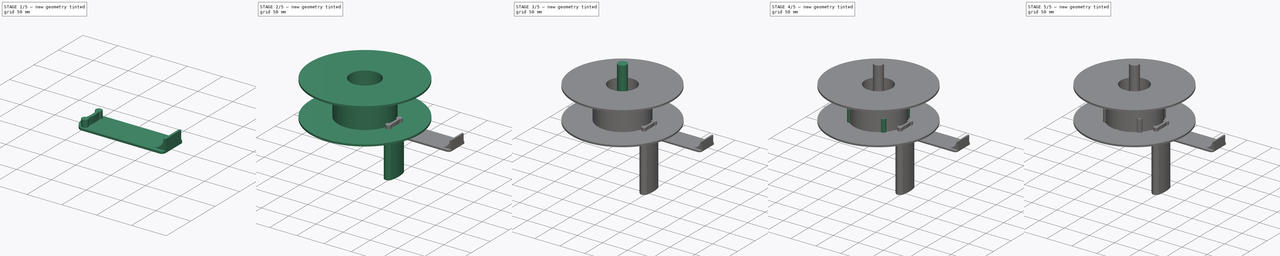
[diagram: build sequence overview — one tinted view per stage of 5, left to right]
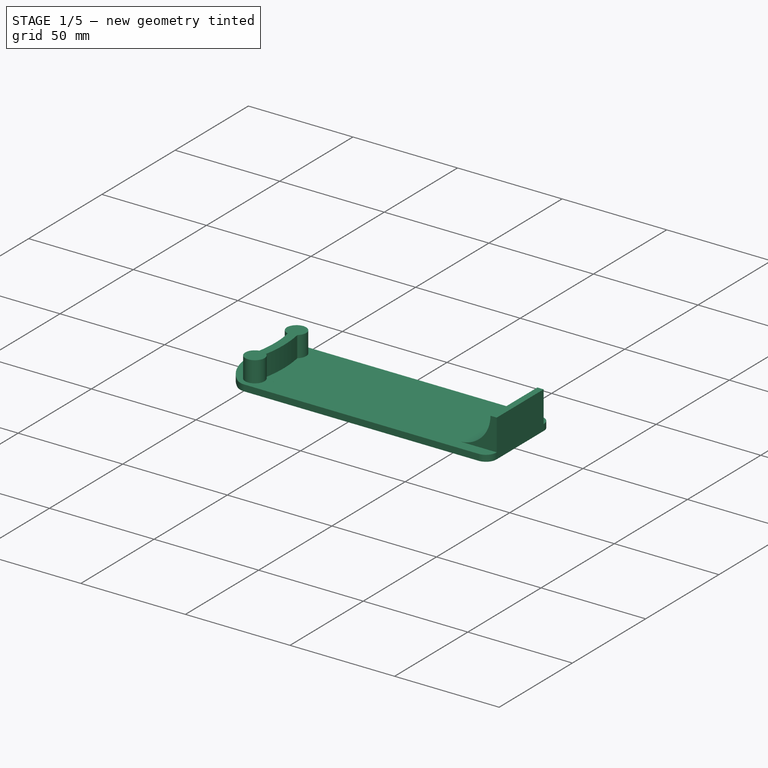
[diagram: stage 1 of 5 — iso view after this stage's code; geometry added in this stage tinted green]
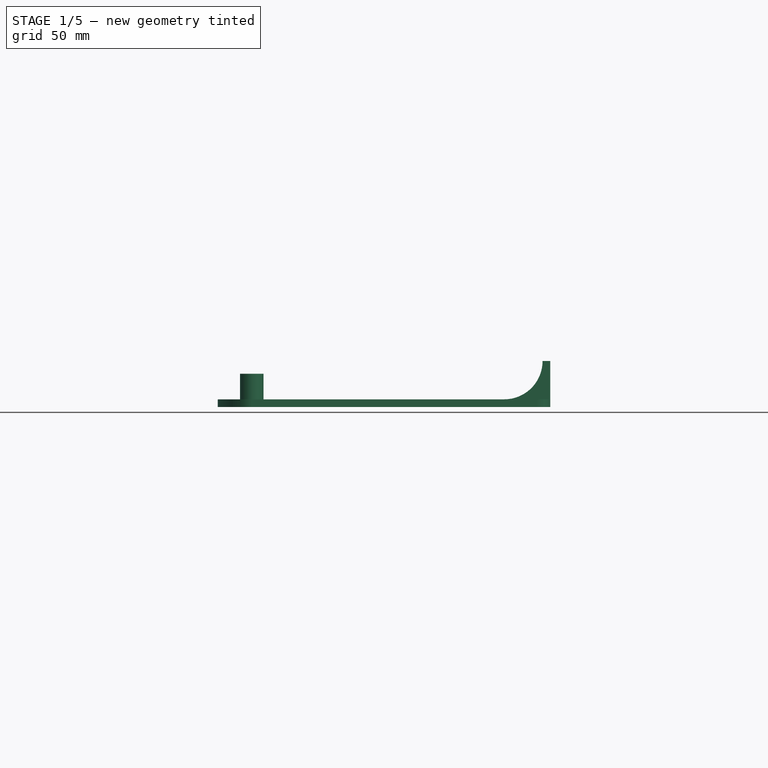
[diagram: stage 1 of 5 — front view after this stage's code; geometry added in this stage tinted green]
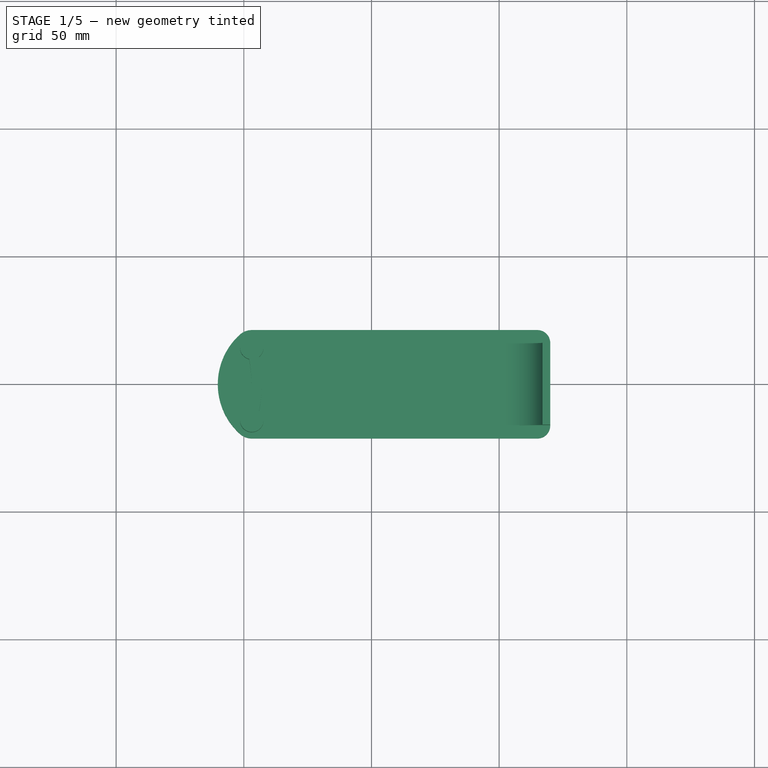
[diagram: stage 1 of 5 — top view after this stage's code; geometry added in this stage tinted green]
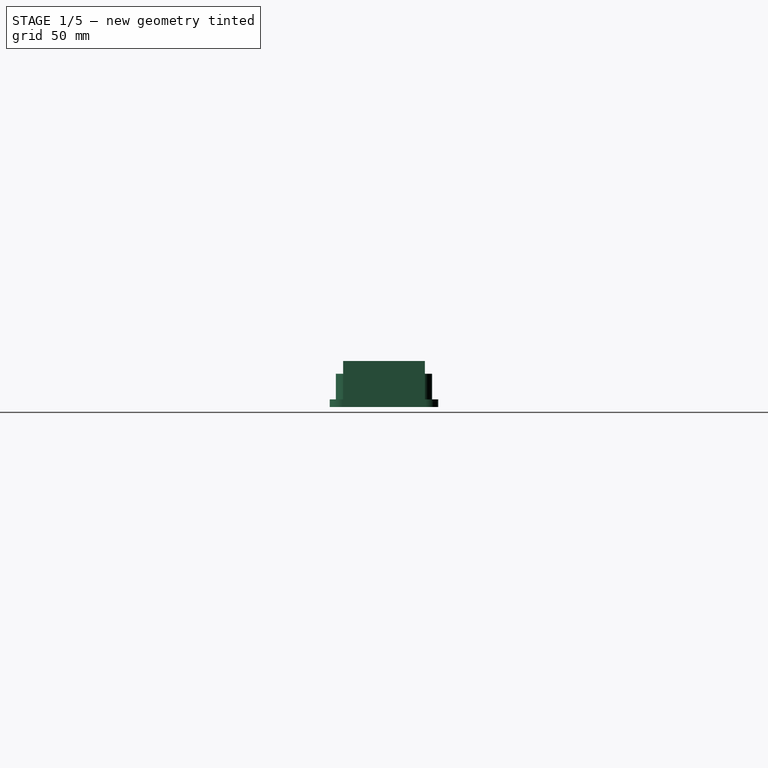
[diagram: stage 1 of 5 — right view after this stage's code; geometry added in this stage tinted green]
FCSTD DOCUMENT  (FreeCAD 1.0R39109 (Git))
Label: horiz2
License: All rights reserved
LicenseURL: http://en.wikipedia.org/wiki/All_rights_reserved
objects: Sketcher::SketchObject×34, PartDesign::Pad×27, PartDesign::Body×12, PartDesign::Pocket×7, PartDesign::AdditiveSphere×4
note: 194 computed .brp shape members not serialized (recipe doc carries the construction recipe); baked Part::Feature solids carry a one-line shape summary decoded from their .brp

FEATURE [PartDesign::Body] Body008  label="Filament"
  AllowCompound = false
  Group = -> [Pad028,Sketch035,Pad026,Sketch036,Pad027,Sketch037]
  Origin = -> Origin008
  Placement = pos=(0,0,63) rot=(0,0,1;0rad)
  Tip = -> Pad027
FEATURE [Sketcher::SketchObject] Sketch038
  ArcFitTolerance = 1e-06
  AttachmentSupport = -> [XY_Plane009]
  FullyConstrained = true
  MakeInternals = false
  MapMode = 5
  sketch-geometry (6):
    g0: ArcOfCircle CenterX=53.1259 CenterY=14.235 CenterZ=0 NormalX=0 NormalY=0 NormalZ=1 AngleXU=0 Radius=7 StartAngle=0.261799 EndAngle=2.30603
    g1: ArcOfCircle CenterX=53.1259 CenterY=-14.235 CenterZ=0 NormalX=0 NormalY=0 NormalZ=1 AngleXU=0 Radius=7 StartAngle=3.97715 EndAngle=6.02139
    g2: LineSegment [constr] StartX=53.1259 StartY=14.235 StartZ=0 EndX=0 EndY=0 EndZ=0
    g3: LineSegment [constr] StartX=53.1259 StartY=-14.235 StartZ=0 EndX=0 EndY=0 EndZ=0
    g4: ArcOfCircle CenterX=0 CenterY=0 CenterZ=0 NormalX=0 NormalY=0 NormalZ=1 AngleXU=0 Radius=62 StartAngle=6.02139 EndAngle=6.54498
    g5: ArcOfCircle CenterX=66 CenterY=0 CenterZ=0 NormalX=0 NormalY=0 NormalZ=1 AngleXU=0 Radius=26.1932 StartAngle=2.30603 EndAngle=3.97715
  constraints (17):
    c: Coincident(g2,g0)
    c: Coincident(g3,g1)
    c: Angle(g-1,g2) = 0.261799
    c: Angle(g3,g-1) = 0.261799
    c: Equal(g0,g1)
    c: Coincident(g2,g-1)
    c: Distance(g2) = 55
    c: Distance(g3) = 55
    c: Coincident(g3,g2)
    c: Radius(g0) = 7
    c: Coincident(g4,g2)
    c: Coincident(g4,g1)
    c: Tangent(g4,g0) = -1.5708
    c: PointOnObject(g5,g-1)
    c: Coincident(g5,g1)
    c: Tangent(g5,g0) = -1.5708
    c: DistanceX(g2,g5) = 66
FEATURE [PartDesign::Pad] Pad029
  Direction = (0,0,1)
  Length = 3
  Length2 = 10
  Profile = -> Sketch038
  ReferenceAxis = -> Sketch038 [N_Axis]
  Reversed = true
  Suppressed = false
  Type = 0
FEATURE [Sketcher::SketchObject] Sketch039
  ArcFitTolerance = 1e-06
  AttachmentSupport = -> [XY_Plane009]
  FullyConstrained = true
  MakeInternals = false
  MapMode = 5
  sketch-geometry (5):
    g0: Circle CenterX=53.1259 CenterY=14.235 CenterZ=0 NormalX=0 NormalY=0 NormalZ=1 AngleXU=0 Radius=4.6
    g1: Circle CenterX=53.1259 CenterY=-14.235 CenterZ=0 NormalX=0 NormalY=0 NormalZ=1 AngleXU=0 Radius=4.6
    g2: LineSegment [constr] StartX=0 StartY=0 StartZ=0 EndX=53.1259 EndY=14.235 EndZ=0
    g3: LineSegment [constr] StartX=0 StartY=0 StartZ=0 EndX=53.1259 EndY=-14.235 EndZ=0
    g4: ArcOfCircle [constr] CenterX=0 CenterY=0 CenterZ=0 NormalX=0 NormalY=0 NormalZ=1 AngleXU=0 Radius=55 StartAngle=6.02139 EndAngle=6.54498
  constraints (12):
    c: Coincident(g2,g-1)
    c: Coincident(g2,g0)
    c: Coincident(g3,g2)
    c: Coincident(g3,g1)
    c: Coincident(g4,g2)
    c: Coincident(g4,g0)
    c: Coincident(g4,g1)
    c: Radius(g4) = 55
    c: Angle(g-1,g2) = 0.261799
    c: Angle(g3,g-1) = 0.261799
    c: Equal(g0,g1)
    c: Radius(g0) = 4.6
FEATURE [PartDesign::Pad] Pad030
  BaseFeature = -> Pad029
  Direction = (0,0,1)
  Length = 5
  Length2 = 10
  Profile = -> Sketch039
  ReferenceAxis = -> Sketch039 [N_Axis]
  Suppressed = false
  Type = 0
FEATURE [PartDesign::Body] Body009  label="Sole1"
  AllowCompound = false
  Group = -> [Sketch038,Pad029,Sketch039,Pad030]
  Origin = -> Origin009
  Placement = pos=(0,0,-245) rot=(0,0,1;0.785398rad)
  Tip = -> Pad030
FEATURE [Sketcher::SketchObject] Sketch041
  ArcFitTolerance = 1e-06
  AttachmentSupport = -> [XY_Plane010]
  FullyConstrained = true
  MakeInternals = false
  MapMode = 5
  sketch-geometry (5):
    g0: Circle CenterX=53.1259 CenterY=14.235 CenterZ=0 NormalX=0 NormalY=0 NormalZ=1 AngleXU=0 Radius=4.6
    g1: Circle CenterX=53.1259 CenterY=-14.235 CenterZ=0 NormalX=0 NormalY=0 NormalZ=1 AngleXU=0 Radius=4.6
    g2: LineSegment [constr] StartX=0 StartY=0 StartZ=0 EndX=53.1259 EndY=14.235 EndZ=0
    g3: LineSegment [constr] StartX=0 StartY=0 StartZ=0 EndX=53.1259 EndY=-14.235 EndZ=0
    g4: ArcOfCircle [constr] CenterX=0 CenterY=0 CenterZ=0 NormalX=0 NormalY=0 NormalZ=1 AngleXU=0 Radius=55 StartAngle=6.02139 EndAngle=6.54498
  constraints (12):
    c: Coincident(g2,g-1)
    c: Coincident(g2,g0)
    c: Coincident(g3,g2)
    c: Coincident(g3,g1)
    c: Coincident(g4,g2)
    c: Coincident(g4,g0)
    c: Coincident(g4,g1)
    c: Radius(g4) = 55
    c: Angle(g-1,g2) = 0.261799
    c: Angle(g3,g-1) = 0.261799
    c: Equal(g0,g1)
    c: Radius(g0) = 4.6
FEATURE [Sketcher::SketchObject] Sketch042
  ArcFitTolerance = 1e-06
  AttachmentSupport = -> [XY_Plane010]
  FullyConstrained = true
  MakeInternals = false
  MapMode = 5
  sketch-geometry (11):
    g0: LineSegment StartX=165 StartY=21.235 StartZ=0 EndX=53.1259 EndY=21.235 EndZ=0
    g1: LineSegment StartX=53.1259 StartY=-21.235 StartZ=0 EndX=165 EndY=-21.235 EndZ=0
    g2: LineSegment StartX=170 StartY=-16.235 StartZ=0 EndX=170 EndY=16.235 EndZ=0
    g3: ArcOfCircle CenterX=66 CenterY=0 CenterZ=0 NormalX=0 NormalY=0 NormalZ=1 AngleXU=0 Radius=26.1932 StartAngle=2.30603 EndAngle=3.97715
    g4: ArcOfCircle CenterX=53.1259 CenterY=14.235 CenterZ=0 NormalX=0 NormalY=0 NormalZ=1 AngleXU=0 Radius=7 StartAngle=1.5708 EndAngle=2.30603
    g5: ArcOfCircle CenterX=53.1259 CenterY=-14.235 CenterZ=0 NormalX=0 NormalY=0 NormalZ=1 AngleXU=0 Radius=7 StartAngle=3.97715 EndAngle=4.71239
    g6: LineSegment [constr] StartX=0 StartY=0 StartZ=0 EndX=53.1259 EndY=14.235 EndZ=0
    g7: LineSegment [constr] StartX=0 StartY=0 StartZ=0 EndX=53.1259 EndY=-14.235 EndZ=0
    g8: ArcOfCircle [constr] CenterX=0 CenterY=0 CenterZ=0 NormalX=0 NormalY=0 NormalZ=1 AngleXU=0 Radius=55 StartAngle=6.02139 EndAngle=6.54498
    g9: ArcOfCircle CenterX=165 CenterY=16.235 CenterZ=0 NormalX=0 NormalY=0 NormalZ=1 AngleXU=0 Radius=5 StartAngle=0 EndAngle=1.5708
    g10: ArcOfCircle CenterX=165 CenterY=-16.235 CenterZ=0 NormalX=0 NormalY=0 NormalZ=1 AngleXU=0 Radius=5 StartAngle=4.71239 EndAngle=6.28319
  constraints (28):
    c: Horizontal(g0)
    c: Horizontal(g1)
    c: Vertical(g2)
    c: PointOnObject(g3,g-1)
    c: Coincident(g5,g3)
    c: Coincident(g6,g-1)
    c: Coincident(g6,g4)
    c: Coincident(g7,g6)
    c: Coincident(g7,g5)
    c: Coincident(g8,g6)
    c: Coincident(g8,g4)
    c: Coincident(g8,g5)
    c: Radius(g8) = 55
    c: Angle(g-1,g6) = 0.261799
    c: Angle(g7,g-1) = 0.261799
    c: Equal(g4,g5)
    c: Radius(g4) = 7
    c: DistanceX(g6,g3) = 66
    c: Tangent(g4,g0) = -1.5708
    c: Tangent(g5,g1) = -1.5708
    c: Tangent(g4,g3) = -1.5708
    c: DistanceX(g6,g2) = 170
    c: Tangent(g9,g0) = -1.5708
    c: Tangent(g9,g2) = -1.5708
    c: Tangent(g10,g2) = -1.5708
    c: Tangent(g10,g1) = -1.5708
    c: Equal(g9,g10)
    c: Radius(g9) = 5
FEATURE [Sketcher::SketchObject] Sketch043
  ArcFitTolerance = 1e-06
  AttachmentSupport = -> [XY_Plane011]
  FullyConstrained = true
  MakeInternals = false
  MapMode = 5
  sketch-geometry (11):
    g0: LineSegment StartX=100 StartY=21.235 StartZ=0 EndX=53.1259 EndY=21.235 EndZ=0
    g1: LineSegment StartX=53.1259 StartY=-21.235 StartZ=0 EndX=100 EndY=-21.235 EndZ=0
    g2: LineSegment StartX=105 StartY=-16.235 StartZ=0 EndX=105 EndY=16.235 EndZ=0
    g3: ArcOfCircle CenterX=66 CenterY=0 CenterZ=0 NormalX=0 NormalY=0 NormalZ=1 AngleXU=0 Radius=26.1932 StartAngle=2.30603 EndAngle=3.97715
    g4: ArcOfCircle CenterX=53.1259 CenterY=14.235 CenterZ=0 NormalX=0 NormalY=0 NormalZ=1 AngleXU=0 Radius=7 StartAngle=1.5708 EndAngle=2.30603
    g5: ArcOfCircle CenterX=53.1259 CenterY=-14.235 CenterZ=0 NormalX=0 NormalY=0 NormalZ=1 AngleXU=0 Radius=7 StartAngle=3.97715 EndAngle=4.71239
    g6: LineSegment [constr] StartX=0 StartY=0 StartZ=0 EndX=53.1259 EndY=14.235 EndZ=0
    g7: LineSegment [constr] StartX=0 StartY=0 StartZ=0 EndX=53.1259 EndY=-14.235 EndZ=0
    g8: ArcOfCircle [constr] CenterX=0 CenterY=0 CenterZ=0 NormalX=0 NormalY=0 NormalZ=1 AngleXU=0 Radius=55 StartAngle=6.02139 EndAngle=6.54498
    g9: ArcOfCircle CenterX=100 CenterY=16.235 CenterZ=0 NormalX=0 NormalY=0 NormalZ=1 AngleXU=0 Radius=5 StartAngle=5.747e-13 EndAngle=1.5708
    g10: ArcOfCircle CenterX=100 CenterY=-16.235 CenterZ=0 NormalX=0 NormalY=0 NormalZ=1 AngleXU=0 Radius=5 StartAngle=4.71239 EndAngle=6.28319
  constraints (28):
    c: Horizontal(g0)
    c: Horizontal(g1)
    c: Vertical(g2)
    c: PointOnObject(g3,g-1)
    c: Coincident(g5,g3)
    c: Coincident(g6,g-1)
    c: Coincident(g6,g4)
    c: Coincident(g7,g6)
    c: Coincident(g7,g5)
    c: Coincident(g8,g6)
    c: Coincident(g8,g4)
    c: Coincident(g8,g5)
    c: Radius(g8) = 55
    c: Angle(g-1,g6) = 0.261799
    c: Angle(g7,g-1) = 0.261799
    c: Equal(g4,g5)
    c: Radius(g4) = 7
    c: DistanceX(g6,g3) = 66
    c: Tangent(g4,g0) = -1.5708
    c: Tangent(g5,g1) = -1.5708
    c: Tangent(g4,g3) = -1.5708
    c: DistanceX(g6,g2) = 105
    c: Equal(g9,g10)
    c: Tangent(g9,g0) = -1.5708
    c: Tangent(g9,g2) = -1.5708
    c: Tangent(g10,g2) = -1.5708
    c: Tangent(g10,g1) = -1.5708
    c: Radius(g9) = 5
FEATURE [PartDesign::Pad] Pad033
  Direction = (0,0,1)
  Length = 3
  Length2 = 10
  Profile = -> Sketch042
  ReferenceAxis = -> Sketch042 [N_Axis]
  Reversed = true
  Suppressed = false
  Type = 0
FEATURE [PartDesign::Pad] Pad032
  BaseFeature = -> Pad033
  Direction = (0,0,1)
  Length = 10
  Length2 = 10
  Profile = -> Sketch041
  ReferenceAxis = -> Sketch041 [N_Axis]
  Suppressed = false
  Type = 0
FEATURE [PartDesign::Pad] Pad034
  Direction = (0,0,1)
  Length = 3
  Length2 = 10
  Profile = -> Sketch043
  ReferenceAxis = -> Sketch043 [N_Axis]
  Reversed = true
  Suppressed = false
  Type = 0
FEATURE [Sketcher::SketchObject] Sketch044
  ArcFitTolerance = 1e-06
  AttachmentSupport = -> [XY_Plane011]
  FullyConstrained = true
  MakeInternals = false
  MapMode = 5
  sketch-geometry (5):
    g0: Circle CenterX=53.1259 CenterY=14.235 CenterZ=0 NormalX=0 NormalY=0 NormalZ=1 AngleXU=0 Radius=1.8
    g1: Circle CenterX=53.1259 CenterY=-14.235 CenterZ=0 NormalX=0 NormalY=0 NormalZ=1 AngleXU=0 Radius=1.8
    g2: ArcOfCircle [constr] CenterX=0 CenterY=-2.13e-14 CenterZ=0 NormalX=0 NormalY=0 NormalZ=1 AngleXU=0 Radius=55 StartAngle=6.02139 EndAngle=6.54498
    g3: LineSegment [constr] StartX=53.1259 StartY=14.235 StartZ=0 EndX=0 EndY=-2.13e-14 EndZ=0
    g4: LineSegment [constr] StartX=53.1259 StartY=-14.235 StartZ=0 EndX=0 EndY=-2.49e-14 EndZ=0
  constraints (12):
    c: Coincident(g2,g-1)
    c: Coincident(g2,g0)
    c: Coincident(g2,g1)
    c: Coincident(g3,g0)
    c: Coincident(g3,g2)
    c: Coincident(g4,g1)
    c: Coincident(g4,g2)
    c: Radius(g2) = 55
    c: Angle(g-1,g3) = 0.261799
    c: Angle(g4,g-1) = 0.261799
    c: Equal(g0,g1)
    c: Radius(g0) = 1.8
FEATURE [PartDesign::Pocket] Pocket007
  BaseFeature = -> Pad034
  Direction = (0,0,-1)
  Length = 5
  Length2 = 5
  Midplane = true
  Profile = -> Sketch044
  ReferenceAxis = -> Sketch044 [N_Axis]
  Suppressed = false
  Type = 1
FEATURE [PartDesign::Body] Body011  label="Stick3"
  AllowCompound = false
  Group = -> [Sketch043,Pad034,Sketch044,Pocket007]
  Origin = -> Origin011
  Placement = pos=(0,0,25) rot=(0,0,1;0.785398rad)
  Tip = -> Pocket007
FEATURE [Sketcher::SketchObject] Sketch045
  ArcFitTolerance = 1e-06
  AttachmentSupport = -> [XZ_Plane010]
  FullyConstrained = true
  MakeInternals = false
  MapMode = 5
  Placement = pos=(0,0,0) rot=(1,0,0;1.5708rad)
  sketch-geometry (4):
    g0: LineSegment StartX=170 StartY=0 StartZ=0 EndX=170 EndY=15 EndZ=0
    g1: LineSegment StartX=170 StartY=15 StartZ=0 EndX=167 EndY=15 EndZ=0
    g2: LineSegment StartX=152 StartY=0 StartZ=0 EndX=170 EndY=0 EndZ=0
    g3: ArcOfCircle CenterX=152 CenterY=15 CenterZ=0 NormalX=0 NormalY=0 NormalZ=1 AngleXU=0 Radius=15 StartAngle=4.71239 EndAngle=6.28319
  constraints (13):
    c: Coincident(g0,g1)
    c: Coincident(g2,g0)
    c: Vertical(g0)
    c: Horizontal(g1)
    c: Horizontal(g2)
    c: DistanceX(g0) = 170
    c: DistanceY(g0) = 0
    c: Coincident(g3,g2)
    c: Coincident(g3,g1)
    c: DistanceX(g2,g3) = 0
    c: DistanceY(g1,g3) = 0
    c: Radius(g3) = 15
    c: DistanceX(g1,g1) = 3
FEATURE [PartDesign::Pad] Pad035
  BaseFeature = -> Pad032
  Direction = (0,-1,2e-16)
  Length = 32
  Length2 = 10
  Midplane = true
  Profile = -> Sketch045
  ReferenceAxis = -> Sketch045 [N_Axis]
  Suppressed = false
  Type = 0
FEATURE [Sketcher::SketchObject] Sketch046
  ArcFitTolerance = 1e-06
  AttachmentSupport = -> [XY_Plane010]
  FullyConstrained = true
  MakeInternals = false
  MapMode = 5
  sketch-geometry (7):
    g0: LineSegment [constr] StartX=0 StartY=0 StartZ=0 EndX=53.1259 EndY=14.235 EndZ=0
    g1: LineSegment [constr] StartX=0 StartY=0 StartZ=0 EndX=53.1259 EndY=-14.235 EndZ=0
    g2: ArcOfCircle [constr] CenterX=0 CenterY=0 CenterZ=0 NormalX=0 NormalY=0 NormalZ=1 AngleXU=0 Radius=55 StartAngle=6.02139 EndAngle=6.54498
    g3: ArcOfCircle CenterX=53.1259 CenterY=14.235 CenterZ=0 NormalX=0 NormalY=0 NormalZ=1 AngleXU=0 Radius=2 StartAngle=0.261799 EndAngle=3.40339
    g4: ArcOfCircle CenterX=53.1259 CenterY=-14.235 CenterZ=0 NormalX=0 NormalY=0 NormalZ=1 AngleXU=0 Radius=2 StartAngle=2.87979 EndAngle=6.02138
    g5: ArcOfCircle CenterX=0 CenterY=0 CenterZ=0 NormalX=0 NormalY=0 NormalZ=1 AngleXU=0 Radius=53 StartAngle=6.02139 EndAngle=6.54498
    g6: ArcOfCircle CenterX=0 CenterY=0 CenterZ=0 NormalX=0 NormalY=0 NormalZ=1 AngleXU=0 Radius=57 StartAngle=6.02139 EndAngle=6.54498
  constraints (19):
    c: Coincident(g0,g-1)
    c: Coincident(g1,g0)
    c: Coincident(g2,g0)
    c: Radius(g2) = 55
    c: Angle(g-1,g0) = 0.261799
    c: Angle(g1,g-1) = 0.261799
    c: Coincident(g3,g0)
    c: PointOnObject(g3,g0)
    c: Coincident(g4,g1)
    c: Coincident(g5,g0)
    c: Coincident(g5,g3)
    c: Coincident(g5,g4)
    c: Coincident(g6,g0)
    c: Radius(g3) = 2
    c: Tangent(g6,g3) = -1.5708
    c: Coincident(g0,g2)
    c: Coincident(g2,g1)
    c: PointOnObject(g4,g1)
    c: Coincident(g4,g6)
FEATURE [PartDesign::Pad] Pad036
  BaseFeature = -> Pad035
  Direction = (0,0,1)
  Length = 10
  Length2 = 10
  Profile = -> Sketch046
  ReferenceAxis = -> Sketch046 [N_Axis]
  Suppressed = false
  Type = 0
FEATURE [PartDesign::Body] Body010  label="Sole2"
  AllowCompound = false
  Group = -> [Pad033,Sketch041,Pad032,Sketch042,Sketch045,Pad035,Sketch046,Pad036]
  Origin = -> Origin010
  Placement = pos=(0,0,-245) rot=(0,0,1;0.785398rad)
  Tip = -> Pad036
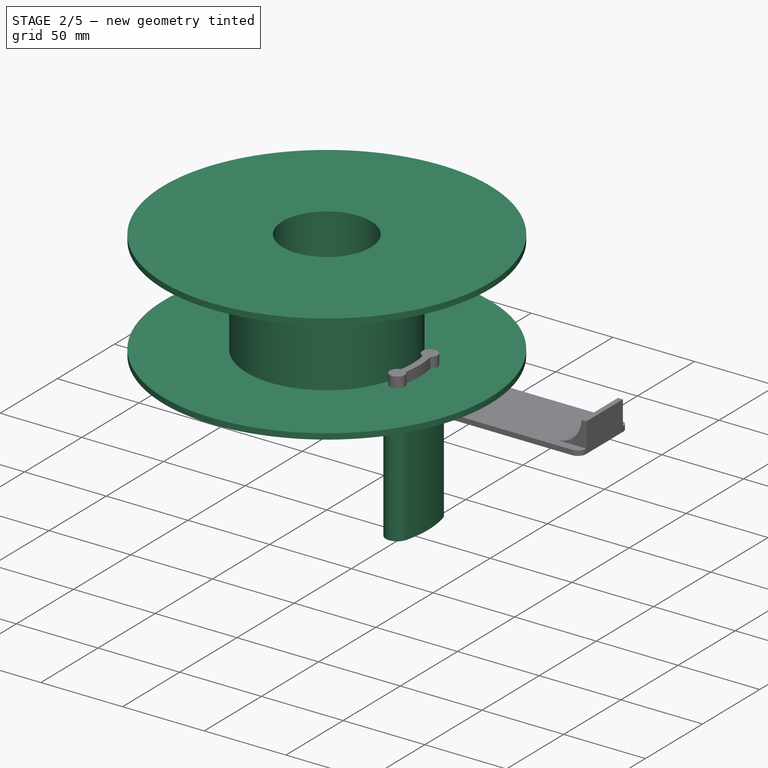
[diagram: stage 2 of 5 — iso view after this stage's code; geometry added in this stage tinted green]
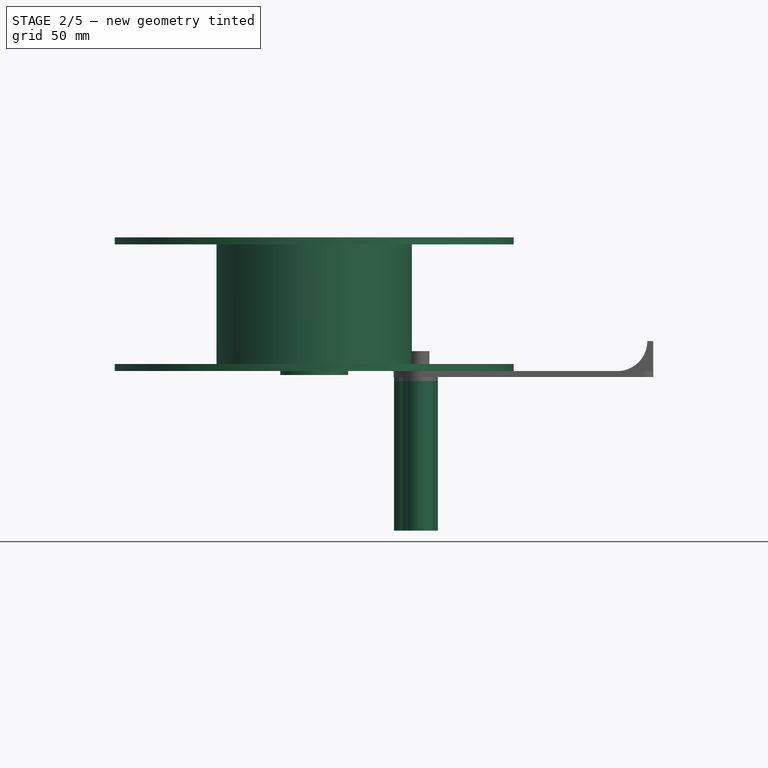
[diagram: stage 2 of 5 — front view after this stage's code; geometry added in this stage tinted green]
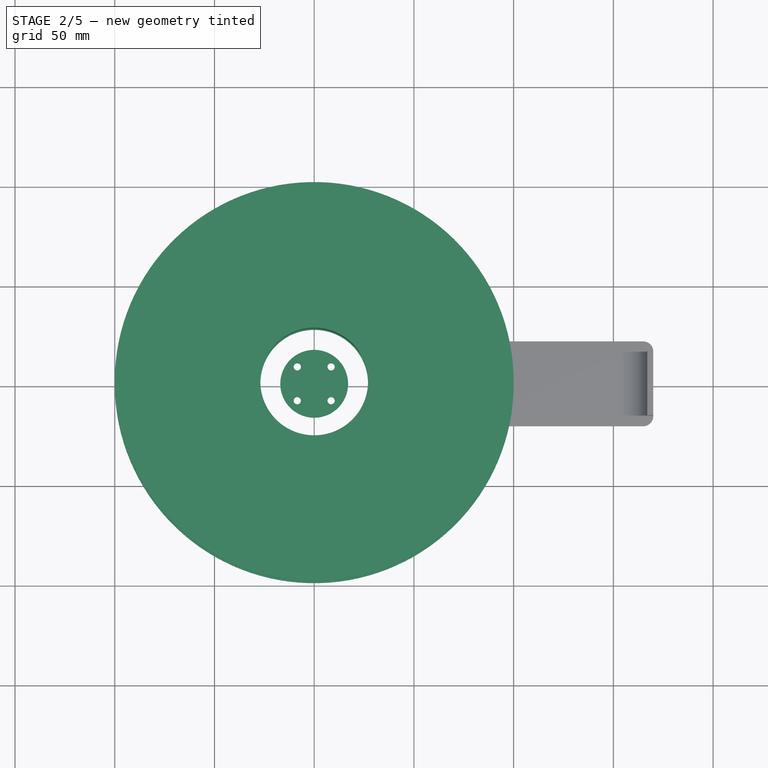
[diagram: stage 2 of 5 — top view after this stage's code; geometry added in this stage tinted green]
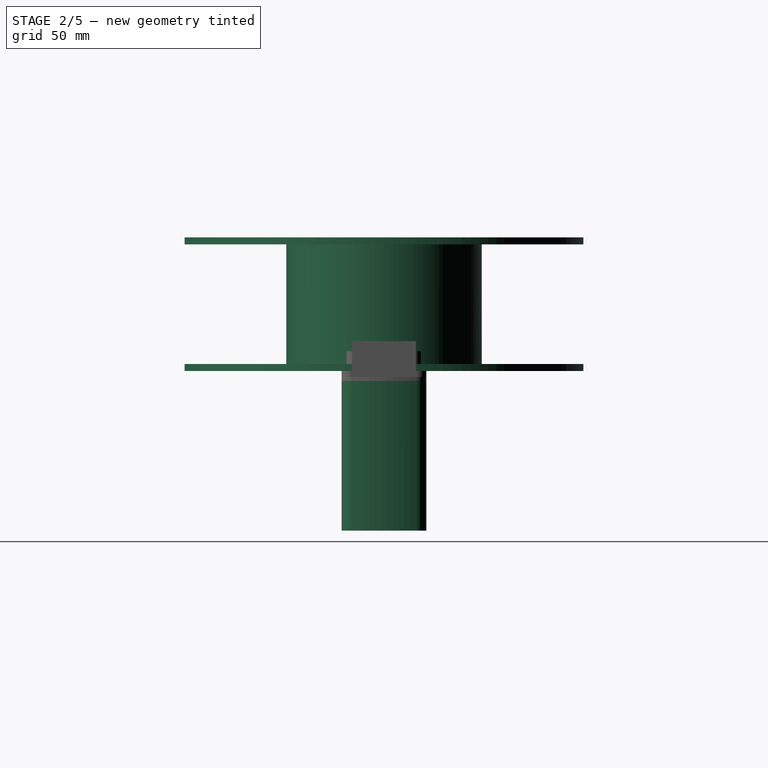
[diagram: stage 2 of 5 — right view after this stage's code; geometry added in this stage tinted green]
FEATURE [PartDesign::Body] Body006  label="Lead"
  AllowCompound = false
  Group = -> [Sketch030,Pad021]
  Origin = -> Origin006
  Placement = pos=(36.0624,35.8787,-245) rot=(0,0,1;0.785398rad)
  Tip = -> Pad021
FEATURE [Sketcher::SketchObject] Sketch031
  ArcFitTolerance = 1e-06
  AttachmentSupport = -> [XY_Plane004]
  FullyConstrained = true
  MakeInternals = false
  MapMode = 5
  sketch-geometry (5):
    g0: Circle CenterX=53.1259 CenterY=14.235 CenterZ=0 NormalX=0 NormalY=0 NormalZ=1 AngleXU=0 Radius=5.2
    g1: Circle CenterX=53.1259 CenterY=-14.235 CenterZ=0 NormalX=0 NormalY=0 NormalZ=1 AngleXU=0 Radius=5.2
    g2: LineSegment [constr] StartX=0 StartY=0 StartZ=0 EndX=53.1259 EndY=14.235 EndZ=0
    g3: LineSegment [constr] StartX=0 StartY=0 StartZ=0 EndX=53.1259 EndY=-14.235 EndZ=0
    g4: ArcOfCircle [constr] CenterX=0 CenterY=0 CenterZ=0 NormalX=0 NormalY=0 NormalZ=1 AngleXU=0 Radius=55 StartAngle=6.02139 EndAngle=6.54498
  constraints (12):
    c: Coincident(g2,g-1)
    c: Coincident(g2,g0)
    c: Coincident(g3,g2)
    c: Coincident(g3,g1)
    c: Coincident(g4,g2)
    c: Coincident(g4,g0)
    c: Coincident(g4,g1)
    c: Radius(g4) = 55
    c: Angle(g-1,g2) = 0.261799
    c: Angle(g3,g-1) = 0.261799
    c: Equal(g0,g1)
    c: Radius(g0) = 5.2
FEATURE [Sketcher::SketchObject] Sketch032
  ArcFitTolerance = 1e-06
  AttachmentSupport = -> [XY_Plane004]
  FullyConstrained = true
  MakeInternals = false
  MapMode = 5
  sketch-geometry (10):
    g0: ArcOfCircle CenterX=0 CenterY=-1.8e-15 CenterZ=0 NormalX=0 NormalY=0 NormalZ=1 AngleXU=0 Radius=62 StartAngle=6.02139 EndAngle=6.54498
    g1: ArcOfCircle CenterX=53.1259 CenterY=14.235 CenterZ=0 NormalX=0 NormalY=0 NormalZ=1 AngleXU=0 Radius=7 StartAngle=0.261799 EndAngle=3.40339
    g2: ArcOfCircle CenterX=53.1259 CenterY=-14.235 CenterZ=0 NormalX=0 NormalY=0 NormalZ=1 AngleXU=0 Radius=7 StartAngle=2.87979 EndAngle=6.02139
    g3: LineSegment [constr] StartX=53.1259 StartY=14.235 StartZ=0 EndX=0 EndY=0 EndZ=0
    g4: LineSegment [constr] StartX=53.1259 StartY=-14.235 StartZ=0 EndX=0 EndY=-1.8e-15 EndZ=0
    g5: ArcOfCircle CenterX=47 CenterY=0 CenterZ=0 NormalX=0 NormalY=0 NormalZ=1 AngleXU=0 Radius=7 StartAngle=2.06702 EndAngle=4.21616
    g6: ArcOfCircle CenterX=41.0455 CenterY=10.9981 CenterZ=0 NormalX=0 NormalY=0 NormalZ=1 AngleXU=0 Radius=5.50658 StartAngle=5.20861 EndAngle=6.54498
    g7: ArcOfCircle CenterX=41.0455 CenterY=-10.9981 CenterZ=0 NormalX=0 NormalY=0 NormalZ=1 AngleXU=0 Radius=5.50658 StartAngle=6.02139 EndAngle=7.35776
    g8: Circle CenterX=47 CenterY=0 CenterZ=0 NormalX=0 NormalY=0 NormalZ=1 AngleXU=0 Radius=1.8
    g9: Circle CenterX=55 CenterY=0 CenterZ=0 NormalX=0 NormalY=0 NormalZ=1 AngleXU=0 Radius=1.8
  constraints (26):
    c: Radius(g0) = 62
    c: Tangent(g1,g0) = -1.5708
    c: Tangent(g2,g0) = -1.5708
    c: Coincident(g3,g1)
    c: Coincident(g4,g2)
    c: Angle(g-1,g3) = 0.261799
    c: Angle(g4,g-1) = 0.261799
    c: Equal(g1,g2)
    c: Coincident(g3,g-1)
    c: Coincident(g0,g3)
    c: Coincident(g4,g0)
    c: Distance(g3) = 55
    c: PointOnObject(g5,g-1)
    c: Radius(g5) = 7
    c: Tangent(g6,g1) = 1.5708
    c: Tangent(g6,g5) = 1.5708
    c: Tangent(g7,g5) = 1.5708
    c: Tangent(g7,g2) = 1.5708
    c: PointOnObject(g6,g3)
    c: PointOnObject(g7,g4)
    c: DistanceX(g0,g5) = 47
    c: Coincident(g8,g5)
    c: PointOnObject(g9,g-1)
    c: Equal(g9,g8)
    c: Radius(g9) = 1.8
    c: DistanceX(g5,g9) = 8
FEATURE [PartDesign::Pad] Pad023
  Direction = (0,0,1)
  Length = 5
  Length2 = 10
  Profile = -> Sketch032
  ReferenceAxis = -> Sketch032 [N_Axis]
  Reversed = true
  Suppressed = false
  Type = 0
FEATURE [Sketcher::SketchObject] Sketch033
  ArcFitTolerance = 1e-06
  AttachmentSupport = -> [XY_Plane004]
  FullyConstrained = true
  MakeInternals = false
  MapMode = 5
  sketch-geometry (14):
    g0: ArcOfCircle CenterX=0 CenterY=-1.8e-15 CenterZ=0 NormalX=0 NormalY=0 NormalZ=1 AngleXU=0 Radius=62 StartAngle=6.02139 EndAngle=6.54498
    g1: ArcOfCircle CenterX=53.1259 CenterY=14.235 CenterZ=0 NormalX=0 NormalY=0 NormalZ=1 AngleXU=0 Radius=7 StartAngle=0.261799 EndAngle=3.40339
    g2: ArcOfCircle CenterX=53.1259 CenterY=-14.235 CenterZ=0 NormalX=0 NormalY=0 NormalZ=1 AngleXU=0 Radius=7 StartAngle=2.87979 EndAngle=6.02139
    g3: LineSegment [constr] StartX=53.1259 StartY=14.235 StartZ=0 EndX=0 EndY=-1.8e-15 EndZ=0
    g4: LineSegment [constr] StartX=53.1259 StartY=-14.235 StartZ=0 EndX=0 EndY=-1.8e-15 EndZ=0
    g5: ArcOfCircle CenterX=47 CenterY=0 CenterZ=0 NormalX=0 NormalY=0 NormalZ=1 AngleXU=0 Radius=7 StartAngle=2.06702 EndAngle=4.21616
    g6: ArcOfCircle CenterX=41.0455 CenterY=10.9981 CenterZ=0 NormalX=0 NormalY=0 NormalZ=1 AngleXU=0 Radius=5.50658 StartAngle=5.20861 EndAngle=6.54498
    g7: ArcOfCircle CenterX=41.0455 CenterY=-10.9981 CenterZ=0 NormalX=0 NormalY=0 NormalZ=1 AngleXU=0 Radius=5.50658 StartAngle=6.02139 EndAngle=7.35776
    g8: ArcOfCircle CenterX=53.1259 CenterY=14.235 CenterZ=0 NormalX=0 NormalY=0 NormalZ=1 AngleXU=0 Radius=5 StartAngle=0.261799 EndAngle=3.40339
    g9: ArcOfCircle CenterX=41.0455 CenterY=10.9981 CenterZ=0 NormalX=0 NormalY=0 NormalZ=1 AngleXU=0 Radius=7.50658 StartAngle=5.20861 EndAngle=6.54498
    g10: ArcOfCircle CenterX=47 CenterY=0 CenterZ=0 NormalX=0 NormalY=0 NormalZ=1 AngleXU=0 Radius=5 StartAngle=2.06702 EndAngle=4.21616
    g11: ArcOfCircle CenterX=41.0455 CenterY=-10.9981 CenterZ=0 NormalX=0 NormalY=0 NormalZ=1 AngleXU=0 Radius=7.50658 StartAngle=6.02139 EndAngle=7.35776
    g12: ArcOfCircle CenterX=53.1259 CenterY=-14.235 CenterZ=0 NormalX=0 NormalY=0 NormalZ=1 AngleXU=0 Radius=5 StartAngle=2.87979 EndAngle=6.02139
    g13: ArcOfCircle CenterX=0 CenterY=-1.31e-14 CenterZ=0 NormalX=0 NormalY=0 NormalZ=1 AngleXU=0 Radius=60 StartAngle=6.02139 EndAngle=6.54498
  constraints (34):
    c: Radius(g0) = 62
    c: Tangent(g1,g0) = -1.5708
    c: Tangent(g2,g0) = -1.5708
    c: Coincident(g3,g1)
    c: Coincident(g4,g2)
    c: Angle(g-1,g3) = 0.261799
    c: Angle(g4,g-1) = 0.261799
    c: Equal(g1,g2)
    c: Coincident(g3,g-1)
    c: Coincident(g0,g3)
    c: Coincident(g4,g0)
    c: Distance(g3) = 55
    c: PointOnObject(g5,g-1)
    c: Radius(g5) = 7
    c: Tangent(g6,g1) = 1.5708
    c: Tangent(g6,g5) = 1.5708
    c: Tangent(g7,g5) = 1.5708
    c: Tangent(g7,g2) = 1.5708
    c: PointOnObject(g6,g3)
    c: PointOnObject(g7,g4)
    c: DistanceX(g0,g5) = 47
    c: Coincident(g8,g1)
    c: Coincident(g9,g6)
    c: Coincident(g10,g5)
    c: Coincident(g11,g7)
    c: Coincident(g12,g2)
    c: Coincident(g13,g0)
    c: Tangent(g13,g8) = -1.5708
    c: Tangent(g9,g8) = 1.5708
    c: Tangent(g10,g9) = 1.5708
    c: Tangent(g11,g10) = 1.5708
    c: Tangent(g12,g11) = 1.5708
    c: Tangent(g13,g12) = -1.5708
    c: Radius(g8) = 5
FEATURE [PartDesign::Pad] Pad024
  BaseFeature = -> Pad023
  Direction = (0,0,1)
  Length = 80
  Length2 = 10
  Profile = -> Sketch033
  ReferenceAxis = -> Sketch033 [N_Axis]
  Reversed = true
  Suppressed = false
  Type = 0
FEATURE [PartDesign::Pad] Pad022
  BaseFeature = -> Pad024
  Direction = (0,0,1)
  Length = 80
  Length2 = 10
  Profile = -> Sketch031
  ReferenceAxis = -> Sketch031 [N_Axis]
  Reversed = true
  Suppressed = false
  Type = 0
FEATURE [PartDesign::Body] Body004  label="Foot1"
  AllowCompound = false
  Group = -> [Sketch029,Sketch031,Sketch032,Pad023,Sketch033,Pad024,Pad022,Pocket006]
  Origin = -> Origin004
  Placement = pos=(0,0,-55) rot=(0,0,1;0.785398rad)
  Tip = -> Pocket006
FEATURE [Sketcher::SketchObject] Sketch034
  ArcFitTolerance = 1e-06
  AttachmentSupport = -> [XY_Plane007]
  FullyConstrained = true
  MakeInternals = false
  MapMode = 5
  sketch-geometry (10):
    g0: Circle CenterX=0 CenterY=0 CenterZ=0 NormalX=0 NormalY=0 NormalZ=1 AngleXU=0 Radius=17
    g1: LineSegment [constr] StartX=-8.48528 StartY=8.48528 StartZ=0 EndX=-8.48528 EndY=-8.48528 EndZ=0
    g2: LineSegment [constr] StartX=-8.48528 StartY=-8.48528 StartZ=0 EndX=8.48528 EndY=-8.48528 EndZ=0
    g3: LineSegment [constr] StartX=8.48528 StartY=-8.48528 StartZ=0 EndX=8.48528 EndY=8.48528 EndZ=0
    g4: LineSegment [constr] StartX=8.48528 StartY=8.48528 StartZ=0 EndX=-8.48528 EndY=8.48528 EndZ=0
    g5: Circle [constr] CenterX=0 CenterY=0 CenterZ=0 NormalX=0 NormalY=0 NormalZ=1 AngleXU=0 Radius=12
    g6: Circle CenterX=8.48528 CenterY=8.48528 CenterZ=0 NormalX=0 NormalY=0 NormalZ=1 AngleXU=0 Radius=1.8
    g7: Circle CenterX=-8.48528 CenterY=8.48528 CenterZ=0 NormalX=0 NormalY=0 NormalZ=1 AngleXU=0 Radius=1.8
    g8: Circle CenterX=-8.48528 CenterY=-8.48528 CenterZ=0 NormalX=0 NormalY=0 NormalZ=1 AngleXU=0 Radius=1.8
    g9: Circle CenterX=8.48528 CenterY=-8.48528 CenterZ=0 NormalX=0 NormalY=0 NormalZ=1 AngleXU=0 Radius=1.8
  constraints (24):
    c: Coincident(g0,g-1)
    c: Radius(g0) = 17
    c: Coincident(g1,g2)
    c: Coincident(g2,g3)
    c: Coincident(g3,g4)
    c: Coincident(g4,g1)
    c: Equal(g1,g2)
    c: Equal(g1,g3)
    c: Equal(g1,g4)
    c: PointOnObject(g1,g5)
    c: PointOnObject(g2,g5)
    c: PointOnObject(g3,g5)
    c: PointOnObject(g4,g5)
    c: Coincident(g5,g0)
    c: Radius(g5) = 12
    c: Parallel(g4,g-1)
    c: Coincident(g6,g3)
    c: Coincident(g7,g1)
    c: Coincident(g8,g1)
    c: Coincident(g9,g2)
    c: Equal(g9,g6)
    c: Equal(g6,g7)
    c: Equal(g7,g8)
    c: Radius(g6) = 1.8
FEATURE [PartDesign::Pad] Pad025
  Direction = (0,0,1)
  Length = 2
  Length2 = 10
  Profile = -> Sketch034
  ReferenceAxis = -> Sketch034 [N_Axis]
  Reversed = true
  Suppressed = false
  Type = 0
FEATURE [PartDesign::Body] Body007  label="plug"
  AllowCompound = false
  Group = -> [Sketch034,Pad025]
  Origin = -> Origin007
  Placement = pos=(0,0,25) rot=(0,0,1;0rad)
  Tip = -> Pad025
FEATURE [Sketcher::SketchObject] Sketch035
  ArcFitTolerance = 1e-06
  AttachmentSupport = -> [XY_Plane008]
  FullyConstrained = true
  MakeInternals = false
  MapMode = 5
  sketch-geometry (2):
    g0: Circle CenterX=0 CenterY=0 CenterZ=0 NormalX=0 NormalY=0 NormalZ=1 AngleXU=0 Radius=100
    g1: Circle CenterX=0 CenterY=0 CenterZ=0 NormalX=0 NormalY=0 NormalZ=1 AngleXU=0 Radius=27
  constraints (4):
    c: Coincident(g0,g-1)
    c: Coincident(g1,g0)
    c: Diameter(g0) = 200
    c: Diameter(g1) = 54
FEATURE [Sketcher::SketchObject] Sketch036
  ArcFitTolerance = 1e-06
  AttachmentOffset = pos=(0,0,67) rot=(0,0,1;0rad)
  AttachmentSupport = -> [XY_Plane008]
  FullyConstrained = true
  MakeInternals = false
  MapMode = 5
  Placement = pos=(0,0,67) rot=(0,0,1;0rad)
  sketch-geometry (2):
    g0: Circle CenterX=0 CenterY=0 CenterZ=0 NormalX=0 NormalY=0 NormalZ=1 AngleXU=0 Radius=100
    g1: Circle CenterX=0 CenterY=0 CenterZ=0 NormalX=0 NormalY=0 NormalZ=1 AngleXU=0 Radius=27
  constraints (4):
    c: Coincident(g0,g-1)
    c: Coincident(g1,g0)
    c: Diameter(g0) = 200
    c: Diameter(g1) = 54
FEATURE [Sketcher::SketchObject] Sketch037
  ArcFitTolerance = 1e-06
  AttachmentSupport = -> [XY_Plane008]
  FullyConstrained = true
  MakeInternals = false
  MapMode = 5
  sketch-geometry (2):
    g0: Circle CenterX=0 CenterY=0 CenterZ=0 NormalX=0 NormalY=0 NormalZ=1 AngleXU=0 Radius=49
    g1: Circle CenterX=0 CenterY=0 CenterZ=0 NormalX=0 NormalY=0 NormalZ=1 AngleXU=0 Radius=27.5
  constraints (4):
    c: Coincident(g0,g-1)
    c: Coincident(g1,g0)
    c: Diameter(g0) = 98
    c: Diameter(g1) = 55
FEATURE [PartDesign::Pad] Pad028
  Direction = (0,0,1)
  Length = 67
  Length2 = 10
  Profile = -> Sketch037
  ReferenceAxis = -> Sketch037 [N_Axis]
  Suppressed = false
  Type = 0
FEATURE [PartDesign::Pad] Pad026
  BaseFeature = -> Pad028
  Direction = (0,0,1)
  Length = 3.5
  Length2 = 10
  Profile = -> Sketch035
  ReferenceAxis = -> Sketch035 [N_Axis]
  Suppressed = false
  Type = 0
FEATURE [PartDesign::Pad] Pad027
  BaseFeature = -> Pad026
  Direction = (0,0,1)
  Length = 3.5
  Length2 = 10
  Profile = -> Sketch036
  ReferenceAxis = -> Sketch036 [N_Axis]
  Reversed = true
  Suppressed = false
  Type = 0
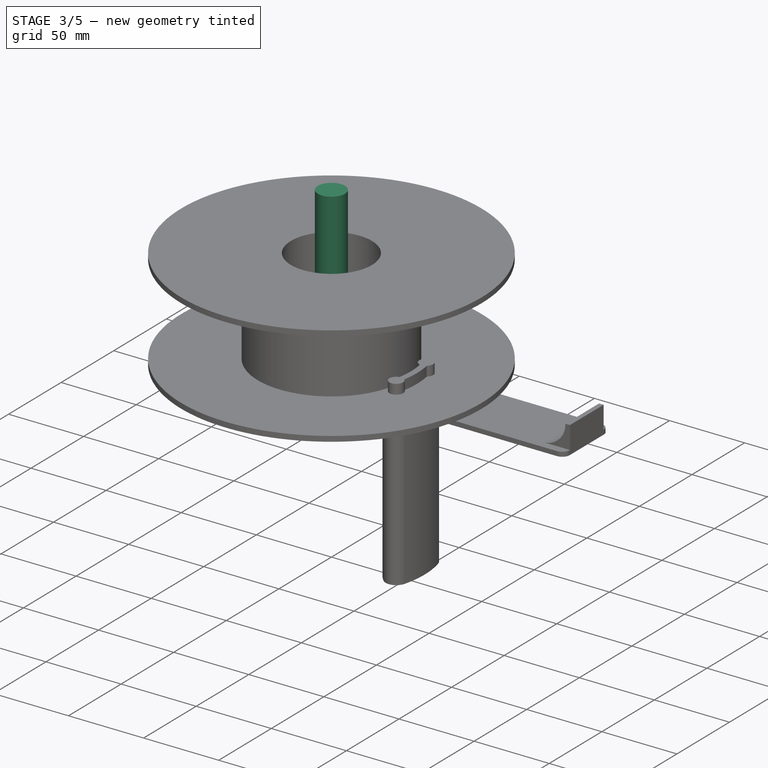
[diagram: stage 3 of 5 — iso view after this stage's code; geometry added in this stage tinted green]
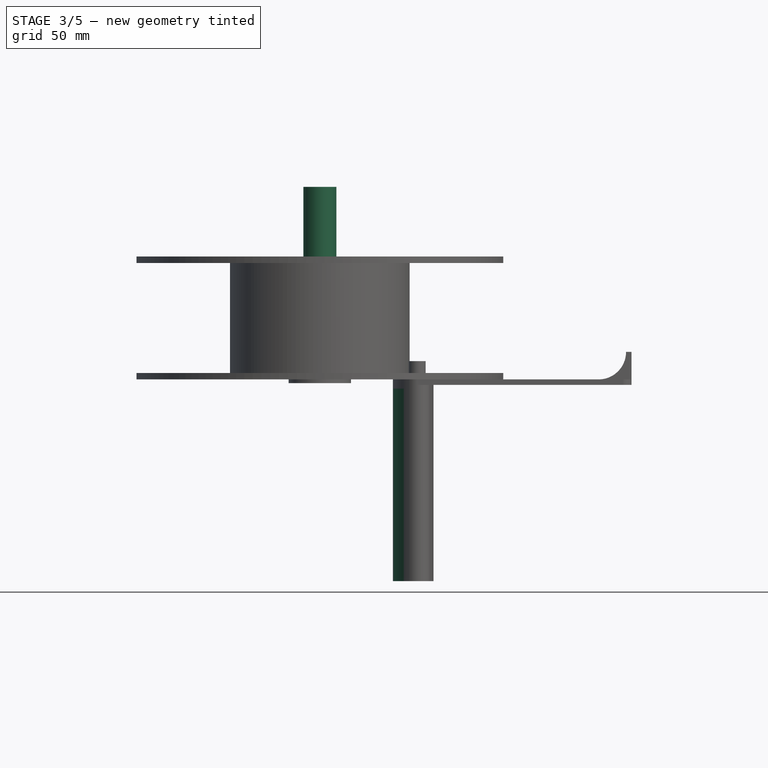
[diagram: stage 3 of 5 — front view after this stage's code; geometry added in this stage tinted green]
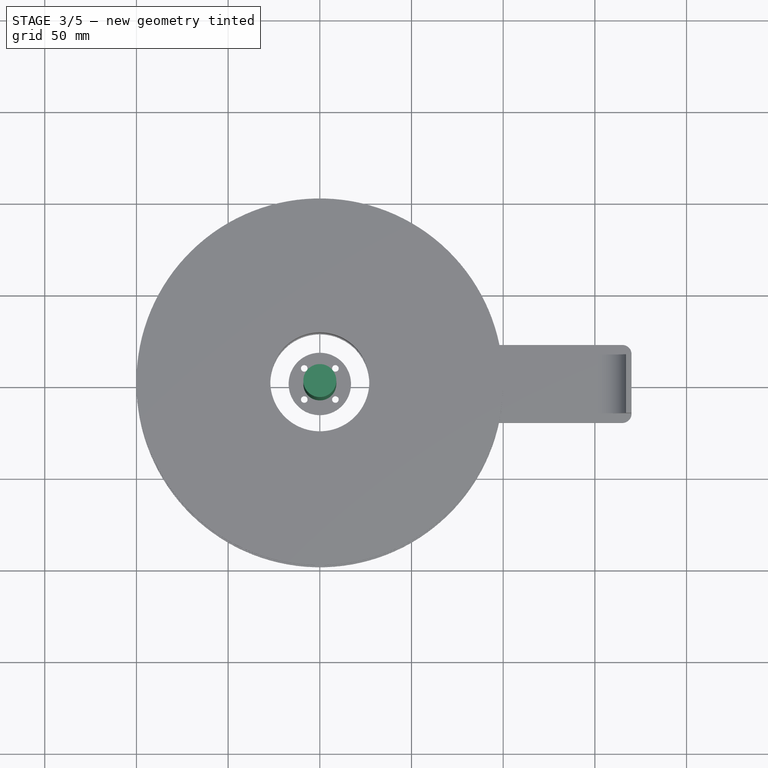
[diagram: stage 3 of 5 — top view after this stage's code; geometry added in this stage tinted green]
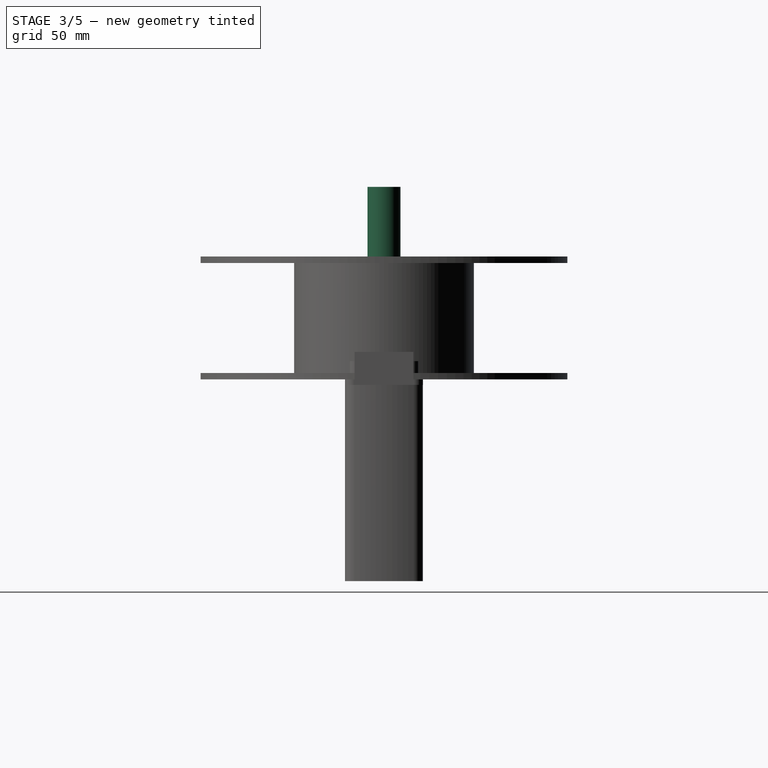
[diagram: stage 3 of 5 — right view after this stage's code; geometry added in this stage tinted green]
FEATURE [PartDesign::Body] Body001  label="Mid"
  AllowCompound = false
  Group = -> [Sketch003,Pad002,Sketch005,Pad004,Sketch007,Sketch011,Pocket004,Sketch018,Pad011,Sketch019,Pad012,Pocket002]
  Origin = -> Origin001
  Placement = pos=(-3.2e-15,-2.6e-15,25) rot=(0,0,-1;3.14159rad)
  Tip = -> Pocket002
FEATURE [Sketcher::SketchObject] Sketch020
  ArcFitTolerance = 1e-06
  AttachmentSupport = -> [XY_Plane003]
  FullyConstrained = true
  MakeInternals = false
  MapMode = 5
  sketch-geometry (10):
    g0: ArcOfCircle CenterX=0 CenterY=0 CenterZ=0 NormalX=0 NormalY=0 NormalZ=1 AngleXU=0 Radius=62 StartAngle=6.02139 EndAngle=6.54498
    g1: ArcOfCircle CenterX=53.1259 CenterY=14.235 CenterZ=0 NormalX=0 NormalY=0 NormalZ=1 AngleXU=0 Radius=7 StartAngle=0.261799 EndAngle=3.40339
    g2: ArcOfCircle CenterX=53.1259 CenterY=-14.235 CenterZ=0 NormalX=0 NormalY=0 NormalZ=1 AngleXU=0 Radius=7 StartAngle=2.87979 EndAngle=6.02139
    g3: LineSegment [constr] StartX=53.1259 StartY=14.235 StartZ=0 EndX=0 EndY=0 EndZ=0
    g4: LineSegment [constr] StartX=53.1259 StartY=-14.235 StartZ=0 EndX=0 EndY=0 EndZ=0
    g5: ArcOfCircle CenterX=47 CenterY=0 CenterZ=0 NormalX=0 NormalY=0 NormalZ=1 AngleXU=0 Radius=7 StartAngle=2.06702 EndAngle=4.21616
    g6: ArcOfCircle CenterX=41.0455 CenterY=10.9981 CenterZ=0 NormalX=0 NormalY=0 NormalZ=1 AngleXU=0 Radius=5.50658 StartAngle=5.20861 EndAngle=6.54498
    g7: ArcOfCircle CenterX=41.0455 CenterY=-10.9981 CenterZ=0 NormalX=0 NormalY=0 NormalZ=1 AngleXU=0 Radius=5.50658 StartAngle=6.02139 EndAngle=7.35776
    g8: Circle CenterX=53.1259 CenterY=14.235 CenterZ=0 NormalX=0 NormalY=0 NormalZ=1 AngleXU=0 Radius=1.5
    g9: Circle CenterX=53.1259 CenterY=-14.235 CenterZ=0 NormalX=0 NormalY=0 NormalZ=1 AngleXU=0 Radius=1.5
  constraints (25):
    c: Radius(g0) = 62
    c: Tangent(g1,g0) = -1.5708
    c: Tangent(g2,g0) = -1.5708
    c: Coincident(g3,g1)
    c: Coincident(g4,g2)
    c: Angle(g-1,g3) = 0.261799
    c: Angle(g4,g-1) = 0.261799
    c: Equal(g1,g2)
    c: Coincident(g3,g-1)
    c: Coincident(g0,g3)
    c: Coincident(g4,g0)
    c: Distance(g3) = 55
    c: PointOnObject(g5,g-1)
    c: Radius(g5) = 7
    c: Tangent(g6,g1) = 1.5708
    c: Tangent(g6,g5) = 1.5708
    c: Tangent(g7,g5) = 1.5708
    c: Tangent(g7,g2) = 1.5708
    c: PointOnObject(g6,g3)
    c: PointOnObject(g7,g4)
    c: DistanceX(g0,g5) = 47
    c: Coincident(g8,g1)
    c: Coincident(g9,g2)
    c: Equal(g8,g9)
    c: Radius(g8) = 1.5
FEATURE [PartDesign::Pad] Pad013
  Direction = (0,0,1)
  Length = 15
  Length2 = 10
  Profile = -> Sketch020
  ReferenceAxis = -> Sketch020 [N_Axis]
  Reversed = true
  Suppressed = false
  Type = 0
FEATURE [Sketcher::SketchObject] Sketch021
  ArcFitTolerance = 1e-06
  AttachmentSupport = -> [XY_Plane003]
  FullyConstrained = true
  MakeInternals = false
  MapMode = 5
  sketch-geometry (14):
    g0: ArcOfCircle CenterX=0 CenterY=-1.8e-15 CenterZ=0 NormalX=0 NormalY=0 NormalZ=1 AngleXU=0 Radius=62 StartAngle=6.02139 EndAngle=6.54498
    g1: ArcOfCircle CenterX=53.1259 CenterY=14.235 CenterZ=0 NormalX=0 NormalY=0 NormalZ=1 AngleXU=0 Radius=7 StartAngle=0.261799 EndAngle=3.40339
    g2: ArcOfCircle CenterX=53.1259 CenterY=-14.235 CenterZ=0 NormalX=0 NormalY=0 NormalZ=1 AngleXU=0 Radius=7 StartAngle=2.87979 EndAngle=6.02139
    g3: LineSegment [constr] StartX=53.1259 StartY=14.235 StartZ=0 EndX=0 EndY=0 EndZ=0
    g4: LineSegment [constr] StartX=53.1259 StartY=-14.235 StartZ=0 EndX=0 EndY=-1.8e-15 EndZ=0
    g5: ArcOfCircle CenterX=47 CenterY=0 CenterZ=0 NormalX=0 NormalY=0 NormalZ=1 AngleXU=0 Radius=7 StartAngle=2.06702 EndAngle=4.21616
    g6: ArcOfCircle CenterX=41.0455 CenterY=10.9981 CenterZ=0 NormalX=0 NormalY=0 NormalZ=1 AngleXU=0 Radius=5.50658 StartAngle=5.20861 EndAngle=6.54498
    g7: ArcOfCircle CenterX=41.0455 CenterY=-10.9981 CenterZ=0 NormalX=0 NormalY=0 NormalZ=1 AngleXU=0 Radius=5.50658 StartAngle=6.02139 EndAngle=7.35776
    g8: ArcOfCircle CenterX=53.1259 CenterY=14.235 CenterZ=0 NormalX=0 NormalY=0 NormalZ=1 AngleXU=0 Radius=5 StartAngle=0.261799 EndAngle=3.40339
    g9: ArcOfCircle CenterX=41.0455 CenterY=10.9981 CenterZ=0 NormalX=0 NormalY=0 NormalZ=1 AngleXU=0 Radius=7.50658 StartAngle=5.20861 EndAngle=6.54498
    g10: ArcOfCircle CenterX=47 CenterY=0 CenterZ=0 NormalX=0 NormalY=0 NormalZ=1 AngleXU=0 Radius=5 StartAngle=2.06702 EndAngle=4.21616
    g11: ArcOfCircle CenterX=41.0455 CenterY=-10.9981 CenterZ=0 NormalX=0 NormalY=0 NormalZ=1 AngleXU=0 Radius=7.50658 StartAngle=6.02139 EndAngle=7.35776
    g12: ArcOfCircle CenterX=53.1259 CenterY=-14.235 CenterZ=0 NormalX=0 NormalY=0 NormalZ=1 AngleXU=0 Radius=5 StartAngle=2.87979 EndAngle=6.02139
    g13: ArcOfCircle CenterX=0 CenterY=-1.79e-14 CenterZ=0 NormalX=0 NormalY=0 NormalZ=1 AngleXU=0 Radius=60 StartAngle=6.02139 EndAngle=6.54498
  constraints (34):
    c: Radius(g0) = 62
    c: Tangent(g1,g0) = -1.5708
    c: Tangent(g2,g0) = -1.5708
    c: Coincident(g3,g1)
    c: Coincident(g4,g2)
    c: Angle(g-1,g3) = 0.261799
    c: Angle(g4,g-1) = 0.261799
    c: Equal(g1,g2)
    c: Coincident(g3,g-1)
    c: Coincident(g0,g3)
    c: Coincident(g4,g0)
    c: Distance(g3) = 55
    c: PointOnObject(g5,g-1)
    c: Radius(g5) = 7
    c: Tangent(g6,g1) = 1.5708
    c: Tangent(g6,g5) = 1.5708
    c: Tangent(g7,g5) = 1.5708
    c: Tangent(g7,g2) = 1.5708
    c: PointOnObject(g6,g3)
    c: PointOnObject(g7,g4)
    c: DistanceX(g0,g5) = 47
    c: Coincident(g8,g1)
    c: Coincident(g9,g6)
    c: Coincident(g10,g5)
    c: Coincident(g11,g7)
    c: Coincident(g12,g2)
    c: Coincident(g13,g0)
    c: Tangent(g13,g8) = -1.5708
    c: Tangent(g9,g8) = 1.5708
    c: Tangent(g10,g9) = 1.5708
    c: Tangent(g11,g10) = 1.5708
    c: Tangent(g12,g11) = 1.5708
    c: Tangent(g13,g12) = -1.5708
    c: Radius(g8) = 5
FEATURE [PartDesign::Pad] Pad014
  BaseFeature = -> Pad013
  Direction = (0,0,1)
  Length = 80
  Length2 = 10
  Profile = -> Sketch021
  ReferenceAxis = -> Sketch021 [N_Axis]
  Reversed = true
  Suppressed = false
  Type = 0
FEATURE [Sketcher::SketchObject] Sketch022
  ArcFitTolerance = 1e-06
  AttachmentSupport = -> [XY_Plane003]
  FullyConstrained = true
  MakeInternals = false
  MapMode = 5
  sketch-geometry (4):
    g0: ArcOfCircle CenterX=55 CenterY=0 CenterZ=0 NormalX=0 NormalY=0 NormalZ=1 AngleXU=0 Radius=6 StartAngle=4.71239 EndAngle=7.85398
    g1: ArcOfCircle CenterX=47 CenterY=0 CenterZ=0 NormalX=0 NormalY=0 NormalZ=1 AngleXU=0 Radius=6 StartAngle=1.5708 EndAngle=4.71239
    g2: LineSegment StartX=55 StartY=-6 StartZ=0 EndX=47 EndY=-6 EndZ=0
    g3: LineSegment StartX=55 StartY=6 StartZ=0 EndX=47 EndY=6 EndZ=0
  constraints (10):
    c: Tangent(g0,g2) = 1.5708
    c: Tangent(g0,g3) = -1.5708
    c: Tangent(g1,g2) = 1.5708
    c: Tangent(g1,g3) = -1.5708
    c: Equal(g0,g1)
    c: PointOnObject(g0,g-1)
    c: PointOnObject(g1,g-1)
    c: Radius(g1) = 6
    c: DistanceX(g-1,g1) = 47
    c: DistanceX(g-1,g0) = 55
FEATURE [PartDesign::Pad] Pad015
  BaseFeature = -> Pad014
  Direction = (0,0,1)
  Length = 80
  Length2 = 10
  Profile = -> Sketch022
  ReferenceAxis = -> Sketch022 [N_Axis]
  Reversed = true
  Suppressed = false
  Type = 0
FEATURE [Sketcher::SketchObject] Sketch023
  ArcFitTolerance = 1e-06
  AttachmentOffset = pos=(0,0,-80) rot=(0,0,1;0rad)
  AttachmentSupport = -> [XY_Plane003]
  FullyConstrained = true
  MakeInternals = false
  MapMode = 5
  Placement = pos=(0,0,-80) rot=(0,0,1;0rad)
  sketch-geometry (2):
    g0: Circle CenterX=47 CenterY=0 CenterZ=0 NormalX=0 NormalY=0 NormalZ=1 AngleXU=0 Radius=1.5
    g1: Circle CenterX=55 CenterY=0 CenterZ=0 NormalX=0 NormalY=0 NormalZ=1 AngleXU=0 Radius=1.5
  constraints (6):
    c: PointOnObject(g0,g-1)
    c: PointOnObject(g1,g-1)
    c: Equal(g0,g1)
    c: Radius(g0) = 1.5
    c: DistanceX(g-1,g0) = 47
    c: DistanceX(g-1,g1) = 55
FEATURE [PartDesign::Pocket] Pocket005
  BaseFeature = -> Pad015
  Direction = (0,0,-1)
  Length = 15
  Length2 = 5
  Profile = -> Sketch023
  ReferenceAxis = -> Sketch023 [N_Axis]
  Reversed = true
  Suppressed = false
  Type = 0
FEATURE [PartDesign::Body] Body003  label="Leg1"
  AllowCompound = false
  Group = -> [Sketch020,Pad013,Sketch021,Pad014,Sketch022,Pad015,Sketch023,Pocket005]
  Origin = -> Origin003
  Placement = pos=(0,0,25) rot=(0,0,1;0.785398rad)
  Tip = -> Pocket005
FEATURE [Sketcher::SketchObject] Sketch027
  ArcFitTolerance = 1e-06
  AttachmentSupport = -> [XY_Plane005]
  FullyConstrained = true
  MakeInternals = false
  MapMode = 5
  sketch-geometry (8):
    g0: ArcOfCircle CenterX=53.1259 CenterY=14.235 CenterZ=0 NormalX=0 NormalY=0 NormalZ=1 AngleXU=0 Radius=7 StartAngle=0.261799 EndAngle=2.30603
    g1: ArcOfCircle CenterX=53.1259 CenterY=-14.235 CenterZ=0 NormalX=0 NormalY=0 NormalZ=1 AngleXU=0 Radius=7 StartAngle=3.97715 EndAngle=6.02139
    g2: LineSegment [constr] StartX=53.1259 StartY=14.235 StartZ=0 EndX=0 EndY=0 EndZ=0
    g3: LineSegment [constr] StartX=53.1259 StartY=-14.235 StartZ=0 EndX=0 EndY=-1.8e-15 EndZ=0
    g4: ArcOfCircle CenterX=66 CenterY=0 CenterZ=0 NormalX=0 NormalY=0 NormalZ=1 AngleXU=0 Radius=26.1932 StartAngle=2.30603 EndAngle=3.97715
    g5: Circle CenterX=53.1259 CenterY=14.235 CenterZ=0 NormalX=0 NormalY=0 NormalZ=1 AngleXU=0 Radius=1.8
    g6: Circle CenterX=53.1259 CenterY=-14.235 CenterZ=0 NormalX=0 NormalY=0 NormalZ=1 AngleXU=0 Radius=1.8
    g7: ArcOfCircle CenterX=0 CenterY=-1.8e-15 CenterZ=0 NormalX=0 NormalY=0 NormalZ=1 AngleXU=0 Radius=62 StartAngle=6.02139 EndAngle=6.54498
  constraints (21):
    c: Coincident(g2,g0)
    c: Coincident(g3,g1)
    c: Angle(g-1,g2) = 0.261799
    c: Angle(g3,g-1) = 0.261799
    c: Equal(g0,g1)
    c: Coincident(g2,g-1)
    c: Distance(g2) = 55
    c: PointOnObject(g4,g-1)
    c: Coincident(g5,g0)
    c: Coincident(g6,g1)
    c: Equal(g5,g6)
    c: Radius(g5) = 1.8
    c: Distance(g3) = 55
    c: Coincident(g3,g2)
    c: Radius(g0) = 7
    c: Coincident(g7,g2)
    c: Coincident(g7,g1)
    c: Tangent(g7,g0) = -1.5708
    c: Coincident(g4,g1)
    c: DistanceX(g2,g4) = 66
    c: Tangent(g0,g4) = -1.5708
FEATURE [PartDesign::Pad] Pad019
  Direction = (0,0,1)
  Length = 5
  Length2 = 10
  Profile = -> Sketch027
  ReferenceAxis = -> Sketch027 [N_Axis]
  Reversed = true
  Suppressed = false
  Type = 0
FEATURE [Sketcher::SketchObject] Sketch028
  ArcFitTolerance = 1e-06
  AttachmentSupport = -> [XY_Plane005]
  FullyConstrained = true
  MakeInternals = false
  MapMode = 5
  sketch-geometry (10):
    g0: ArcOfCircle CenterX=53.1259 CenterY=14.235 CenterZ=0 NormalX=0 NormalY=0 NormalZ=1 AngleXU=0 Radius=7 StartAngle=0.261799 EndAngle=2.30603
    g1: ArcOfCircle CenterX=53.1259 CenterY=-14.235 CenterZ=0 NormalX=0 NormalY=0 NormalZ=1 AngleXU=0 Radius=7 StartAngle=3.97715 EndAngle=6.02139
    g2: LineSegment [constr] StartX=53.1259 StartY=14.235 StartZ=0 EndX=0 EndY=0 EndZ=0
    g3: LineSegment [constr] StartX=53.1259 StartY=-14.235 StartZ=0 EndX=0 EndY=0 EndZ=0
    g4: ArcOfCircle CenterX=53.1259 CenterY=14.235 CenterZ=0 NormalX=0 NormalY=0 NormalZ=1 AngleXU=0 Radius=5 StartAngle=0.261799 EndAngle=2.30603
    g5: ArcOfCircle CenterX=53.1259 CenterY=-14.235 CenterZ=0 NormalX=0 NormalY=0 NormalZ=1 AngleXU=0 Radius=5 StartAngle=3.97715 EndAngle=6.02139
    g6: ArcOfCircle CenterX=0 CenterY=0 CenterZ=0 NormalX=0 NormalY=0 NormalZ=1 AngleXU=0 Radius=62 StartAngle=6.02139 EndAngle=6.54498
    g7: ArcOfCircle CenterX=0 CenterY=0 CenterZ=0 NormalX=0 NormalY=0 NormalZ=1 AngleXU=0 Radius=60 StartAngle=6.02139 EndAngle=6.54498
    g8: ArcOfCircle CenterX=66 CenterY=0 CenterZ=0 NormalX=0 NormalY=0 NormalZ=1 AngleXU=0 Radius=26.1932 StartAngle=2.30603 EndAngle=3.97715
    g9: ArcOfCircle CenterX=66 CenterY=0 CenterZ=0 NormalX=0 NormalY=0 NormalZ=1 AngleXU=0 Radius=24.1932 StartAngle=2.30603 EndAngle=3.97715
  constraints (27):
    c: Coincident(g2,g0)
    c: Coincident(g3,g1)
    c: Angle(g-1,g2) = 0.261799
    c: Angle(g3,g-1) = 0.261799
    c: Equal(g0,g1)
    c: Coincident(g2,g-1)
    c: Distance(g2) = 55
    c: Distance(g3) = 55
    c: Coincident(g3,g2)
    c: Radius(g0) = 7
    c: Coincident(g4,g0)
    c: Coincident(g5,g1)
    c: Equal(g4,g5)
    c: Coincident(g6,g2)
    c: Coincident(g6,g1)
    c: Coincident(g7,g2)
    c: Coincident(g7,g5)
    c: Tangent(g7,g4) = -1.5708
    c: Tangent(g6,g0) = -1.5708
    c: PointOnObject(g8,g-1)
    c: Coincident(g8,g1)
    c: Tangent(g8,g0) = -1.5708
    c: Coincident(g9,g8)
    c: Coincident(g9,g5)
    c: Tangent(g9,g4) = -1.5708
    c: Radius(g4) = 5
    c: DistanceX(g2,g8) = 66
FEATURE [PartDesign::Pad] Pad020
  BaseFeature = -> Pad019
  Direction = (0,0,1)
  Length = 110
  Length2 = 10
  Profile = -> Sketch028
  ReferenceAxis = -> Sketch028 [N_Axis]
  Reversed = true
  Suppressed = false
  Type = 0
FEATURE [PartDesign::Body] Body005  label="Shoe1"
  AllowCompound = false
  Group = -> [Sketch027,Pad019,Sketch028,Pad020]
  Origin = -> Origin005
  Placement = pos=(0,0,-135) rot=(0,0,1;0.785398rad)
  Tip = -> Pad020
FEATURE [Sketcher::SketchObject] Sketch029
  ArcFitTolerance = 1e-06
  AttachmentOffset = pos=(0,0,-80) rot=(0,0,1;0rad)
  AttachmentSupport = -> [XY_Plane004]
  FullyConstrained = true
  MakeInternals = false
  MapMode = 5
  Placement = pos=(0,0,-80) rot=(0,0,1;0rad)
  sketch-geometry (5):
    g0: Circle CenterX=53.1259 CenterY=14.235 CenterZ=0 NormalX=0 NormalY=0 NormalZ=1 AngleXU=0 Radius=1.5
    g1: Circle CenterX=53.1259 CenterY=-14.235 CenterZ=0 NormalX=0 NormalY=0 NormalZ=1 AngleXU=0 Radius=1.5
    g2: ArcOfCircle [constr] CenterX=0 CenterY=-1.6e-14 CenterZ=0 NormalX=0 NormalY=0 NormalZ=1 AngleXU=0 Radius=55 StartAngle=6.02139 EndAngle=6.54498
    g3: LineSegment [constr] StartX=53.1259 StartY=14.235 StartZ=0 EndX=0 EndY=-1.6e-14 EndZ=0
    g4: LineSegment [constr] StartX=53.1259 StartY=-14.235 StartZ=0 EndX=0 EndY=-1.6e-14 EndZ=0
  constraints (12):
    c: Coincident(g2,g-1)
    c: Coincident(g2,g0)
    c: Coincident(g2,g1)
    c: Coincident(g3,g0)
    c: Coincident(g3,g2)
    c: Coincident(g4,g1)
    c: Coincident(g4,g2)
    c: Radius(g2) = 55
    c: Angle(g-1,g3) = 0.261799
    c: Angle(g4,g-1) = 0.261799
    c: Equal(g0,g1)
    c: Radius(g0) = 1.5
FEATURE [Sketcher::SketchObject] Sketch030
  ArcFitTolerance = 1e-06
  AttachmentSupport = -> [XY_Plane006]
  FullyConstrained = true
  MakeInternals = false
  MapMode = 5
  sketch-geometry (1):
    g0: Circle CenterX=0 CenterY=0 CenterZ=0 NormalX=0 NormalY=0 NormalZ=1 AngleXU=0 Radius=9
  constraints (3):
    c: Radius(g0) = 9
    c: DistanceX(g0) = 0
    c: DistanceY(g0) = 0
FEATURE [PartDesign::Pad] Pad021
  Direction = (0,0,1)
  Length = 105
  Length2 = 10
  Profile = -> Sketch030
  ReferenceAxis = -> Sketch030 [N_Axis]
  Suppressed = false
  Type = 0
FEATURE [PartDesign::Pocket] Pocket006
  BaseFeature = -> Pad022
  Direction = (0,0,-1)
  Length = 15
  Length2 = 5
  Profile = -> Sketch029
  ReferenceAxis = -> Sketch029 [N_Axis]
  Reversed = true
  Suppressed = false
  Type = 0
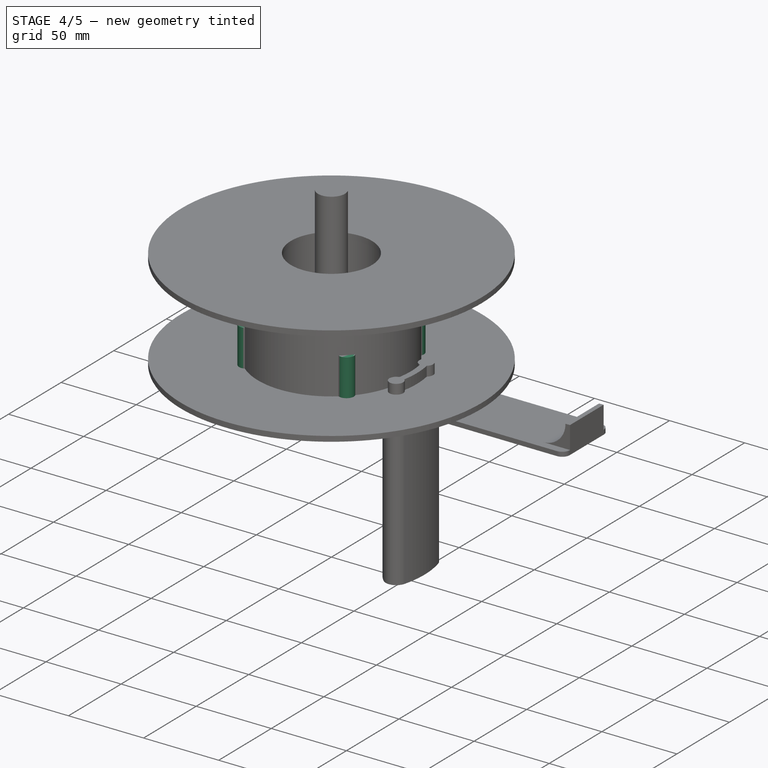
[diagram: stage 4 of 5 — iso view after this stage's code; geometry added in this stage tinted green]
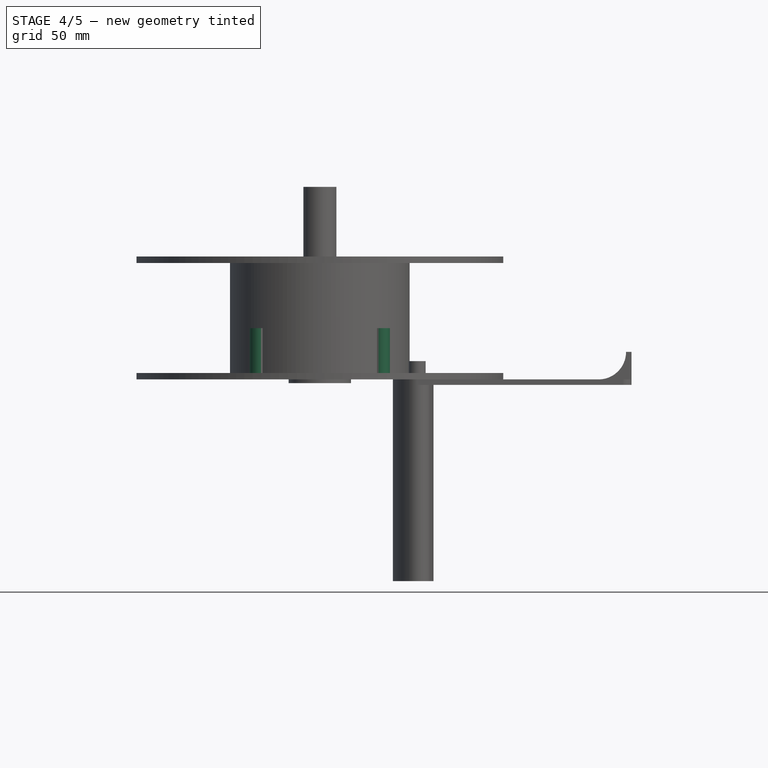
[diagram: stage 4 of 5 — front view after this stage's code; geometry added in this stage tinted green]
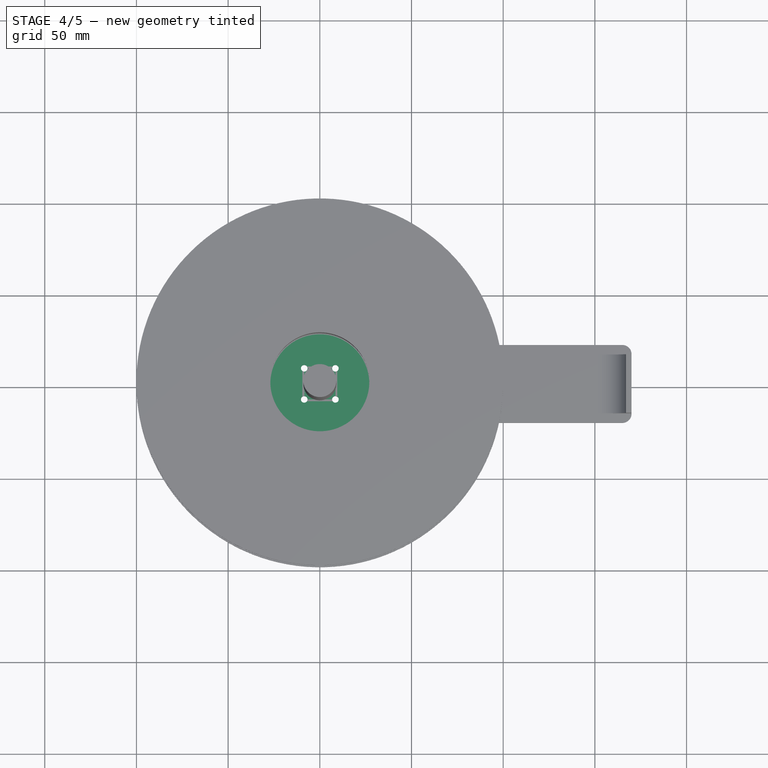
[diagram: stage 4 of 5 — top view after this stage's code; geometry added in this stage tinted green]
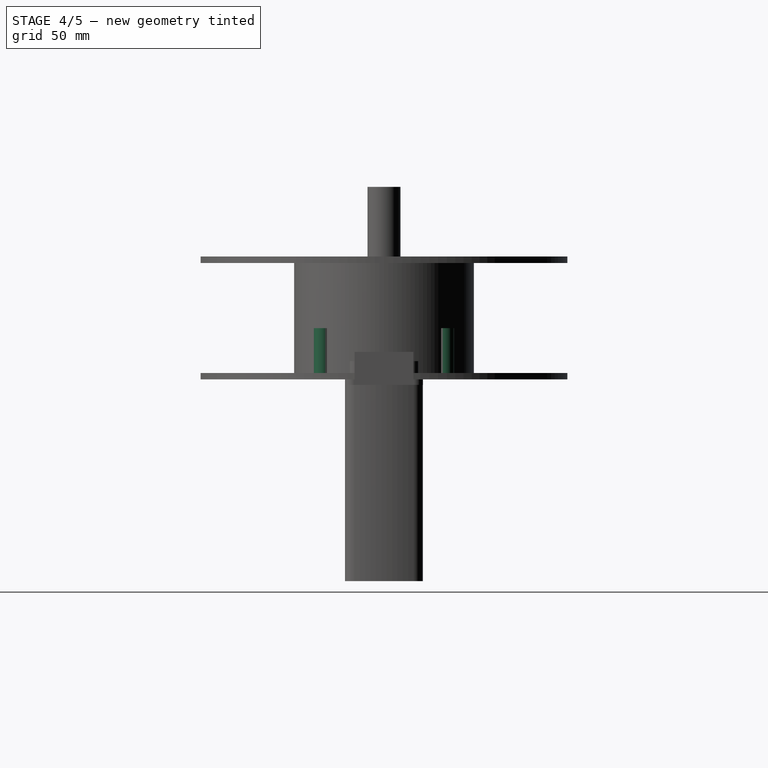
[diagram: stage 4 of 5 — right view after this stage's code; geometry added in this stage tinted green]
FEATURE [PartDesign::Body] Body  label="Wheel"
  AllowCompound = false
  Group = -> [Pad001,Sketch001,Sketch,Pad,Sketch002,Pocket]
  Origin = -> Origin
  Placement = pos=(-1.22e-14,-1.28e-14,63) rot=(0,0,-1;3.14159rad)
  Tip = -> Pocket
FEATURE [Sketcher::SketchObject] Sketch003
  ArcFitTolerance = 1e-06
  AttachmentSupport = -> [XY_Plane001]
  FullyConstrained = true
  MakeInternals = false
  MapMode = 5
  sketch-geometry (10):
    g0: Circle CenterX=0 CenterY=0 CenterZ=0 NormalX=0 NormalY=0 NormalZ=1 AngleXU=0 Radius=62
    g1: LineSegment [constr] StartX=-8.48528 StartY=8.48528 StartZ=0 EndX=-8.48528 EndY=-8.48528 EndZ=0
    g2: LineSegment [constr] StartX=-8.48528 StartY=-8.48528 StartZ=0 EndX=8.48528 EndY=-8.48528 EndZ=0
    g3: LineSegment [constr] StartX=8.48528 StartY=-8.48528 StartZ=0 EndX=8.48528 EndY=8.48528 EndZ=0
    g4: LineSegment [constr] StartX=8.48528 StartY=8.48528 StartZ=0 EndX=-8.48528 EndY=8.48528 EndZ=0
    g5: Circle [constr] CenterX=0 CenterY=0 CenterZ=0 NormalX=0 NormalY=0 NormalZ=1 AngleXU=0 Radius=12
    g6: Circle CenterX=8.48528 CenterY=8.48528 CenterZ=0 NormalX=0 NormalY=0 NormalZ=1 AngleXU=0 Radius=1.8
    g7: Circle CenterX=-8.48528 CenterY=8.48528 CenterZ=0 NormalX=0 NormalY=0 NormalZ=1 AngleXU=0 Radius=1.8
    g8: Circle CenterX=-8.48528 CenterY=-8.48528 CenterZ=0 NormalX=0 NormalY=0 NormalZ=1 AngleXU=0 Radius=1.8
    g9: Circle CenterX=8.48528 CenterY=-8.48528 CenterZ=0 NormalX=0 NormalY=0 NormalZ=1 AngleXU=0 Radius=1.8
  constraints (24):
    c: Coincident(g0,g-1)
    c: Radius(g0) = 62
    c: Coincident(g1,g2)
    c: Coincident(g2,g3)
    c: Coincident(g3,g4)
    c: Coincident(g4,g1)
    c: Equal(g1,g2)
    c: Equal(g1,g3)
    c: Equal(g1,g4)
    c: PointOnObject(g1,g5)
    c: PointOnObject(g2,g5)
    c: PointOnObject(g3,g5)
    c: PointOnObject(g4,g5)
    c: Coincident(g5,g0)
    c: Radius(g5) = 12
    c: Parallel(g4,g-1)
    c: Coincident(g6,g3)
    c: Coincident(g7,g1)
    c: Coincident(g8,g1)
    c: Coincident(g9,g2)
    c: Equal(g9,g6)
    c: Equal(g6,g7)
    c: Equal(g7,g8)
    c: Radius(g6) = 1.8
FEATURE [PartDesign::Pad] Pad002
  Direction = (0,0,1)
  Length = 3
  Length2 = 10
  Profile = -> Sketch003
  ReferenceAxis = -> Sketch003 [N_Axis]
  Suppressed = false
  Type = 0
FEATURE [Sketcher::SketchObject] Sketch004
  ArcFitTolerance = 1e-06
  AttachmentSupport = -> [XY_Plane002]
  FullyConstrained = true
  MakeInternals = false
  MapMode = 5
  sketch-geometry (11):
    g0: Circle CenterX=0 CenterY=0 CenterZ=0 NormalX=0 NormalY=0 NormalZ=1 AngleXU=0 Radius=52
    g1: Circle CenterX=0 CenterY=0 CenterZ=0 NormalX=0 NormalY=0 NormalZ=1 AngleXU=0 Radius=2
    g2: LineSegment [constr] StartX=-8.48528 StartY=8.48528 StartZ=0 EndX=-8.48528 EndY=-8.48528 EndZ=0
    g3: LineSegment [constr] StartX=-8.48528 StartY=-8.48528 StartZ=0 EndX=8.48528 EndY=-8.48528 EndZ=0
    g4: LineSegment [constr] StartX=8.48528 StartY=-8.48528 StartZ=0 EndX=8.48528 EndY=8.48528 EndZ=0
    g5: LineSegment [constr] StartX=8.48528 StartY=8.48528 StartZ=0 EndX=-8.48528 EndY=8.48528 EndZ=0
    g6: Circle [constr] CenterX=0 CenterY=0 CenterZ=0 NormalX=0 NormalY=0 NormalZ=1 AngleXU=0 Radius=12
    g7: Circle CenterX=8.48528 CenterY=8.48528 CenterZ=0 NormalX=0 NormalY=0 NormalZ=1 AngleXU=0 Radius=1.8
    g8: Circle CenterX=-8.48528 CenterY=8.48528 CenterZ=0 NormalX=0 NormalY=0 NormalZ=1 AngleXU=0 Radius=1.8
    g9: Circle CenterX=-8.48528 CenterY=-8.48528 CenterZ=0 NormalX=0 NormalY=0 NormalZ=1 AngleXU=0 Radius=1.8
    g10: Circle CenterX=8.48528 CenterY=-8.48528 CenterZ=0 NormalX=0 NormalY=0 NormalZ=1 AngleXU=0 Radius=1.8
  constraints (26):
    c: Coincident(g0,g-1)
    c: Radius(g0) = 52
    c: Coincident(g1,g0)
    c: Radius(g1) = 2
    c: Coincident(g2,g3)
    c: Coincident(g3,g4)
    c: Coincident(g4,g5)
    c: Coincident(g5,g2)
    c: Equal(g2,g3)
    c: Equal(g2,g4)
    c: Equal(g2,g5)
    c: PointOnObject(g2,g6)
    c: PointOnObject(g3,g6)
    c: PointOnObject(g4,g6)
    c: PointOnObject(g5,g6)
    c: Coincident(g6,g0)
    c: Radius(g6) = 12
    c: Parallel(g5,g-1)
    c: Coincident(g7,g4)
    c: Coincident(g8,g2)
    c: Coincident(g9,g2)
    c: Coincident(g10,g3)
    c: Equal(g10,g7)
    c: Equal(g7,g8)
    c: Equal(g8,g9)
    c: Radius(g7) = 1.8
FEATURE [PartDesign::Pad] Pad003
  Direction = (0,0,1)
  Length = 3
  Length2 = 10
  Profile = -> Sketch004
  ReferenceAxis = -> Sketch004 [N_Axis]
  Suppressed = false
  Type = 0
FEATURE [Sketcher::SketchObject] Sketch005
  ArcFitTolerance = 1e-06
  AttachmentSupport = -> [XY_Plane001]
  FullyConstrained = true
  MakeInternals = false
  MapMode = 5
  sketch-geometry (9):
    g0: LineSegment [constr] StartX=33.234 StartY=33.234 StartZ=0 EndX=-33.234 EndY=33.234 EndZ=0
    g1: LineSegment [constr] StartX=-33.234 StartY=33.234 StartZ=0 EndX=-33.234 EndY=-33.234 EndZ=0
    g2: LineSegment [constr] StartX=-33.234 StartY=-33.234 StartZ=0 EndX=33.234 EndY=-33.234 EndZ=0
    g3: LineSegment [constr] StartX=33.234 StartY=-33.234 StartZ=0 EndX=33.234 EndY=33.234 EndZ=0
    g4: Circle [constr] CenterX=-2e-16 CenterY=0 CenterZ=0 NormalX=0 NormalY=0 NormalZ=1 AngleXU=0 Radius=47
    g5: Circle CenterX=33.234 CenterY=33.234 CenterZ=0 NormalX=0 NormalY=0 NormalZ=1 AngleXU=0 Radius=5
    g6: Circle CenterX=-33.234 CenterY=33.234 CenterZ=0 NormalX=0 NormalY=0 NormalZ=1 AngleXU=0 Radius=5
    g7: Circle CenterX=-33.234 CenterY=-33.234 CenterZ=0 NormalX=0 NormalY=0 NormalZ=1 AngleXU=0 Radius=5
    g8: Circle CenterX=33.234 CenterY=-33.234 CenterZ=0 NormalX=0 NormalY=0 NormalZ=1 AngleXU=0 Radius=5
  constraints (22):
    c: Coincident(g0,g1)
    c: Coincident(g1,g2)
    c: Coincident(g2,g3)
    c: Coincident(g3,g0)
    c: Equal(g0,g1)
    c: Equal(g0,g2)
    c: Equal(g0,g3)
    c: PointOnObject(g0,g4)
    c: PointOnObject(g1,g4)
    c: PointOnObject(g2,g4)
    c: PointOnObject(g3,g4)
    c: Coincident(g4,g-1)
    c: Radius(g4) = 47
    c: Parallel(g0,g-1)
    c: Coincident(g5,g0)
    c: Coincident(g6,g0)
    c: Coincident(g7,g1)
    c: Coincident(g8,g2)
    c: Equal(g8,g5)
    c: Equal(g5,g6)
    c: Equal(g6,g7)
    c: Radius(g6) = 5
FEATURE [PartDesign::Pad] Pad004
  BaseFeature = -> Pad002
  Direction = (0,0,1)
  Length = 28
  Length2 = 10
  Profile = -> Sketch005
  ReferenceAxis = -> Sketch005 [N_Axis]
  Suppressed = false
  Type = 0
FEATURE [Sketcher::SketchObject] Sketch006
  ArcFitTolerance = 1e-06
  AttachmentSupport = -> [XY_Plane002]
  FullyConstrained = true
  MakeInternals = false
  MapMode = 5
  sketch-geometry (9):
    g0: LineSegment [constr] StartX=33.234 StartY=-33.234 StartZ=0 EndX=33.234 EndY=33.234 EndZ=0
    g1: LineSegment [constr] StartX=33.234 StartY=33.234 StartZ=0 EndX=-33.234 EndY=33.234 EndZ=0
    g2: LineSegment [constr] StartX=-33.234 StartY=33.234 StartZ=0 EndX=-33.234 EndY=-33.234 EndZ=0
    g3: LineSegment [constr] StartX=-33.234 StartY=-33.234 StartZ=0 EndX=33.234 EndY=-33.234 EndZ=0
    g4: Circle [constr] CenterX=0 CenterY=0 CenterZ=0 NormalX=0 NormalY=0 NormalZ=1 AngleXU=0 Radius=47
    g5: Circle CenterX=-33.234 CenterY=33.234 CenterZ=0 NormalX=0 NormalY=0 NormalZ=1 AngleXU=0 Radius=1.8
    g6: Circle CenterX=-33.234 CenterY=-33.234 CenterZ=0 NormalX=0 NormalY=0 NormalZ=1 AngleXU=0 Radius=1.8
    g7: Circle CenterX=33.234 CenterY=-33.234 CenterZ=0 NormalX=0 NormalY=0 NormalZ=1 AngleXU=0 Radius=1.8
    g8: Circle CenterX=33.234 CenterY=33.234 CenterZ=0 NormalX=0 NormalY=0 NormalZ=1 AngleXU=0 Radius=1.8
  constraints (22):
    c: Coincident(g0,g1)
    c: Coincident(g1,g2)
    c: Coincident(g2,g3)
    c: Coincident(g3,g0)
    c: Equal(g0,g1)
    c: Equal(g0,g2)
    c: Equal(g0,g3)
    c: PointOnObject(g0,g4)
    c: PointOnObject(g1,g4)
    c: PointOnObject(g2,g4)
    c: PointOnObject(g3,g4)
    c: Coincident(g4,g-1)
    c: Radius(g4) = 47
    c: Parallel(g1,g-1)
    c: Coincident(g5,g1)
    c: Coincident(g6,g2)
    c: Coincident(g7,g0)
    c: Coincident(g8,g0)
    c: Equal(g8,g7)
    c: Equal(g7,g6)
    c: Equal(g6,g5)
    c: Radius(g5) = 1.8
FEATURE [PartDesign::Pocket] Pocket001
  BaseFeature = -> Pad003
  Direction = (0,0,-1)
  Length = 5
  Length2 = 5
  Midplane = true
  Profile = -> Sketch006
  ReferenceAxis = -> Sketch006 [N_Axis]
  Suppressed = false
  Type = 1
FEATURE [Sketcher::SketchObject] Sketch007
  ArcFitTolerance = 1e-06
  AttachmentOffset = pos=(0,0,28) rot=(0,0,1;0rad)
  AttachmentSupport = -> [XY_Plane001]
  FullyConstrained = true
  MakeInternals = false
  MapMode = 5
  Placement = pos=(0,0,28) rot=(0,0,1;0rad)
  sketch-geometry (9):
    g0: LineSegment [constr] StartX=-33.234 StartY=33.234 StartZ=0 EndX=-33.234 EndY=-33.234 EndZ=0
    g1: LineSegment [constr] StartX=-33.234 StartY=-33.234 StartZ=0 EndX=33.234 EndY=-33.234 EndZ=0
    g2: LineSegment [constr] StartX=33.234 StartY=-33.234 StartZ=0 EndX=33.234 EndY=33.234 EndZ=0
    g3: LineSegment [constr] StartX=33.234 StartY=33.234 StartZ=0 EndX=-33.234 EndY=33.234 EndZ=0
    g4: Circle [constr] CenterX=0 CenterY=0 CenterZ=0 NormalX=0 NormalY=0 NormalZ=1 AngleXU=0 Radius=47
    g5: Circle CenterX=33.234 CenterY=33.234 CenterZ=0 NormalX=0 NormalY=0 NormalZ=1 AngleXU=0 Radius=1.5
    g6: Circle CenterX=-33.234 CenterY=33.234 CenterZ=0 NormalX=0 NormalY=0 NormalZ=1 AngleXU=0 Radius=1.5
    g7: Circle CenterX=-33.234 CenterY=-33.234 CenterZ=0 NormalX=0 NormalY=0 NormalZ=1 AngleXU=0 Radius=1.5
    g8: Circle CenterX=33.234 CenterY=-33.234 CenterZ=0 NormalX=0 NormalY=0 NormalZ=1 AngleXU=0 Radius=1.5
  constraints (22):
    c: Coincident(g0,g1)
    c: Coincident(g1,g2)
    c: Coincident(g2,g3)
    c: Coincident(g3,g0)
    c: Equal(g0,g1)
    c: Equal(g0,g2)
    c: Equal(g0,g3)
    c: PointOnObject(g0,g4)
    c: PointOnObject(g1,g4)
    c: PointOnObject(g2,g4)
    c: PointOnObject(g3,g4)
    c: Coincident(g4,g-1)
    c: Radius(g4) = 47
    c: Parallel(g3,g-1)
    c: Coincident(g5,g2)
    c: Coincident(g6,g0)
    c: Coincident(g7,g0)
    c: Coincident(g8,g1)
    c: Equal(g8,g5)
    c: Equal(g5,g6)
    c: Equal(g6,g7)
    c: Radius(g6) = 1.5
FEATURE [Sketcher::SketchObject] Sketch011
  ArcFitTolerance = 1e-06
  AttachmentSupport = -> [XY_Plane001]
  FullyConstrained = true
  MakeInternals = false
  MapMode = 5
  sketch-geometry (17):
    g0: LineSegment [constr] StartX=-27.5 StartY=-47.6314 StartZ=0 EndX=47.6314 EndY=-27.5 EndZ=0
    g1: LineSegment [constr] StartX=47.6314 StartY=-27.5 StartZ=0 EndX=27.5 EndY=47.6314 EndZ=0
    g2: LineSegment [constr] StartX=27.5 StartY=47.6314 StartZ=0 EndX=-47.6314 EndY=27.5 EndZ=0
    g3: LineSegment [constr] StartX=-47.6314 StartY=27.5 StartZ=0 EndX=-27.5 EndY=-47.6314 EndZ=0
    g4: Circle [constr] CenterX=1e-16 CenterY=2e-16 CenterZ=0 NormalX=0 NormalY=0 NormalZ=1 AngleXU=0 Radius=55
    g5: Circle CenterX=27.5 CenterY=47.6314 CenterZ=0 NormalX=0 NormalY=0 NormalZ=1 AngleXU=0 Radius=1.8
    g6: Circle CenterX=-47.6314 CenterY=27.5 CenterZ=0 NormalX=0 NormalY=0 NormalZ=1 AngleXU=0 Radius=1.8
    g7: Circle CenterX=-27.5 CenterY=-47.6314 CenterZ=0 NormalX=0 NormalY=0 NormalZ=1 AngleXU=0 Radius=1.8
    g8: Circle CenterX=47.6314 CenterY=-27.5 CenterZ=0 NormalX=0 NormalY=0 NormalZ=1 AngleXU=0 Radius=1.8
    g9: LineSegment [constr] StartX=-27.5 StartY=47.6314 StartZ=0 EndX=47.6314 EndY=27.5 EndZ=0
    g10: LineSegment [constr] StartX=47.6314 StartY=27.5 StartZ=0 EndX=27.5 EndY=-47.6314 EndZ=0
    g11: LineSegment [constr] StartX=27.5 StartY=-47.6314 StartZ=0 EndX=-47.6314 EndY=-27.5 EndZ=0
    g12: LineSegment [constr] StartX=-47.6314 StartY=-27.5 StartZ=0 EndX=-27.5 EndY=47.6314 EndZ=0
    g13: Circle CenterX=-27.5 CenterY=47.6314 CenterZ=0 NormalX=0 NormalY=0 NormalZ=1 AngleXU=0 Radius=1.8
    g14: Circle CenterX=47.6314 CenterY=27.5 CenterZ=0 NormalX=0 NormalY=0 NormalZ=1 AngleXU=0 Radius=1.8
    g15: Circle CenterX=27.5 CenterY=-47.6314 CenterZ=0 NormalX=0 NormalY=0 NormalZ=1 AngleXU=0 Radius=1.8
    g16: Circle CenterX=-47.6314 CenterY=-27.5 CenterZ=0 NormalX=0 NormalY=0 NormalZ=1 AngleXU=0 Radius=1.8
  constraints (42):
    c: Coincident(g0,g1)
    c: Coincident(g1,g2)
    c: Coincident(g2,g3)
    c: Coincident(g3,g0)
    c: Equal(g0,g1)
    c: Equal(g0,g2)
    c: Equal(g0,g3)
    c: PointOnObject(g0,g4)
    c: PointOnObject(g1,g4)
    c: PointOnObject(g2,g4)
    c: PointOnObject(g3,g4)
    c: Coincident(g4,g-1)
    c: Radius(g4) = 55
    c: Coincident(g5,g1)
    c: Coincident(g6,g2)
    c: Coincident(g7,g0)
    c: Coincident(g8,g0)
    c: Equal(g8,g7)
    c: Equal(g7,g6)
    c: Equal(g6,g5)
    c: Radius(g5) = 1.8
    c: Angle(g-1,g0) = 0.261799
    c: PointOnObject(g9,g4)
    c: PointOnObject(g9,g4)
    c: Coincident(g9,g10)
    c: PointOnObject(g10,g4)
    c: Coincident(g10,g11)
    c: PointOnObject(g11,g4)
    c: Coincident(g11,g12)
    c: Coincident(g12,g9)
    c: Equal(g9,g10)
    c: Angle(g11,g12) = 1.5708
    c: Angle(g10,g11) = 1.5708
    c: Angle(g10,g-2) = 0.261799
    c: Coincident(g13,g9)
    c: Coincident(g14,g9)
    c: Coincident(g15,g10)
    c: Coincident(g16,g11)
    c: Equal(g16,g15)
    c: Equal(g15,g14)
    c: Equal(g14,g13)
    c: Equal(g13,g5)
FEATURE [PartDesign::Pocket] Pocket004
  BaseFeature = -> Pad004
  Direction = (0,0,-1)
  Length = 6
  Length2 = 5
  Midplane = true
  Profile = -> Sketch011
  ReferenceAxis = -> Sketch011 [N_Axis]
  Suppressed = false
  Type = 0
FEATURE [PartDesign::Body] Body002  label="Top"
  AllowCompound = false
  Group = -> [Sketch004,Pad003,Sketch006,Pocket001,Sphere,Sphere001,Sphere002,Sphere003]
  Origin = -> Origin002
  Placement = pos=(-6.6e-15,-1.03e-14,53) rot=(0,0,-1;3.14159rad)
  Tip = -> Sphere003
FEATURE [Sketcher::SketchObject] Sketch018
  ArcFitTolerance = 1e-06
  AttachmentOffset = pos=(0,0,0) rot=(0,1,0;0.785398rad)
  AttachmentSupport = -> [YZ_Plane001]
  FullyConstrained = true
  MakeInternals = false
  MapMode = 5
  Placement = pos=(0,0,0) rot=(0.281085,0.678598,0.678598;2.59356rad)
  sketch-geometry (10):
    g0: LineSegment StartX=-47 StartY=28 StartZ=0 EndX=-47 EndY=3 EndZ=0
    g1: LineSegment StartX=-47 StartY=3 StartZ=0 EndX=-27 EndY=3 EndZ=0
    g2: LineSegment StartX=-42 StartY=18 StartZ=0 EndX=-42 EndY=28 EndZ=0
    g3: LineSegment StartX=-42 StartY=28 StartZ=0 EndX=-47 EndY=28 EndZ=0
    g4: ArcOfCircle CenterX=-27 CenterY=18 CenterZ=0 NormalX=0 NormalY=0 NormalZ=1 AngleXU=0 Radius=15 StartAngle=3.14159 EndAngle=4.71239
    g5: LineSegment StartX=47 StartY=28 StartZ=0 EndX=47 EndY=3 EndZ=0
    g6: LineSegment StartX=47 StartY=3 StartZ=0 EndX=27 EndY=3 EndZ=0
    g7: LineSegment StartX=42 StartY=18 StartZ=0 EndX=42 EndY=28 EndZ=0
    g8: LineSegment StartX=42 StartY=28 StartZ=0 EndX=47 EndY=28 EndZ=0
    g9: ArcOfCircle CenterX=27 CenterY=18 CenterZ=0 NormalX=0 NormalY=0 NormalZ=1 AngleXU=0 Radius=15 StartAngle=4.71239 EndAngle=6.28319
  constraints (27):
    c: Coincident(g0,g1)
    c: Coincident(g2,g3)
    c: Coincident(g3,g0)
    c: Vertical(g0)
    c: Vertical(g2)
    c: Horizontal(g1)
    c: Horizontal(g3)
    c: Coincident(g4,g2)
    c: Coincident(g4,g1)
    c: DistanceX(g1,g4) = 0
    c: DistanceY(g0) = 3
    c: DistanceX(g0,g-1) = 47
    c: DistanceX(g3,g3) = 5
    c: DistanceY(g0,g0) = 25
    c: DistanceY(g2,g4) = 0
    c: Radius(g4) = 15
    c: Symmetric(g0,g5,g-2)
    c: Symmetric(g0,g5,g-2)
    c: Symmetric(g1,g6,g-2)
    c: Symmetric(g1,g6,g-2)
    c: Symmetric(g2,g7,g-2)
    c: Symmetric(g2,g7,g-2)
    c: Symmetric(g3,g8,g-2)
    c: Symmetric(g3,g8,g-2)
    c: Equal(g4,g9)
    c: Symmetric(g4,g9,g-2)
    c: Symmetric(g4,g9,g-2)
FEATURE [PartDesign::Pad] Pad011
  BaseFeature = -> Pocket004
  Direction = (0.707107,0.707107,0)
  Length = 10
  Length2 = 10
  Midplane = true
  Profile = -> Sketch018
  ReferenceAxis = -> Sketch018 [N_Axis]
  Suppressed = false
  Type = 0
FEATURE [Sketcher::SketchObject] Sketch019
  ArcFitTolerance = 1e-06
  AttachmentOffset = pos=(0,0,0) rot=(0,1,0;-0.785398rad)
  AttachmentSupport = -> [YZ_Plane001]
  FullyConstrained = true
  MakeInternals = false
  MapMode = 5
  Placement = pos=(0,0,0) rot=(-0.862856,-0.357407,-0.357407;4.56541rad)
  sketch-geometry (10):
    g0: LineSegment StartX=-47 StartY=28 StartZ=0 EndX=-47 EndY=3 EndZ=0
    g1: LineSegment StartX=-47 StartY=3 StartZ=0 EndX=-27 EndY=3 EndZ=0
    g2: LineSegment StartX=-42 StartY=18 StartZ=0 EndX=-42 EndY=28 EndZ=0
    g3: LineSegment StartX=-42 StartY=28 StartZ=0 EndX=-47 EndY=28 EndZ=0
    g4: ArcOfCircle CenterX=-27 CenterY=18 CenterZ=0 NormalX=0 NormalY=0 NormalZ=1 AngleXU=0 Radius=15 StartAngle=3.14159 EndAngle=4.71239
    g5: LineSegment StartX=47 StartY=28 StartZ=0 EndX=47 EndY=3 EndZ=0
    g6: LineSegment StartX=47 StartY=3 StartZ=0 EndX=27 EndY=3 EndZ=0
    g7: LineSegment StartX=42 StartY=18 StartZ=0 EndX=42 EndY=28 EndZ=0
    g8: LineSegment StartX=42 StartY=28 StartZ=0 EndX=47 EndY=28 EndZ=0
    g9: ArcOfCircle CenterX=27 CenterY=18 CenterZ=0 NormalX=0 NormalY=0 NormalZ=1 AngleXU=0 Radius=15 StartAngle=4.71239 EndAngle=6.28319
  constraints (27):
    c: Coincident(g0,g1)
    c: Coincident(g2,g3)
    c: Coincident(g3,g0)
    c: Vertical(g0)
    c: Vertical(g2)
    c: Horizontal(g1)
    c: Horizontal(g3)
    c: Coincident(g4,g2)
    c: Coincident(g4,g1)
    c: DistanceX(g1,g4) = 0
    c: DistanceY(g0) = 3
    c: DistanceX(g0,g-1) = 47
    c: DistanceX(g3,g3) = 5
    c: DistanceY(g0,g0) = 25
    c: DistanceY(g2,g4) = 0
    c: Radius(g4) = 15
    c: Symmetric(g0,g5,g-2)
    c: Symmetric(g0,g5,g-2)
    c: Symmetric(g1,g6,g-2)
    c: Symmetric(g1,g6,g-2)
    c: Symmetric(g2,g7,g-2)
    c: Symmetric(g2,g7,g-2)
    c: Symmetric(g3,g8,g-2)
    c: Symmetric(g3,g8,g-2)
    c: Equal(g4,g9)
    c: Symmetric(g4,g9,g-2)
    c: Symmetric(g4,g9,g-2)
FEATURE [PartDesign::Pad] Pad012
  BaseFeature = -> Pad011
  Direction = (0.707107,-0.707107,0)
  Length = 10
  Length2 = 10
  Midplane = true
  Profile = -> Sketch019
  ReferenceAxis = -> Sketch019 [N_Axis]
  Suppressed = false
  Type = 0
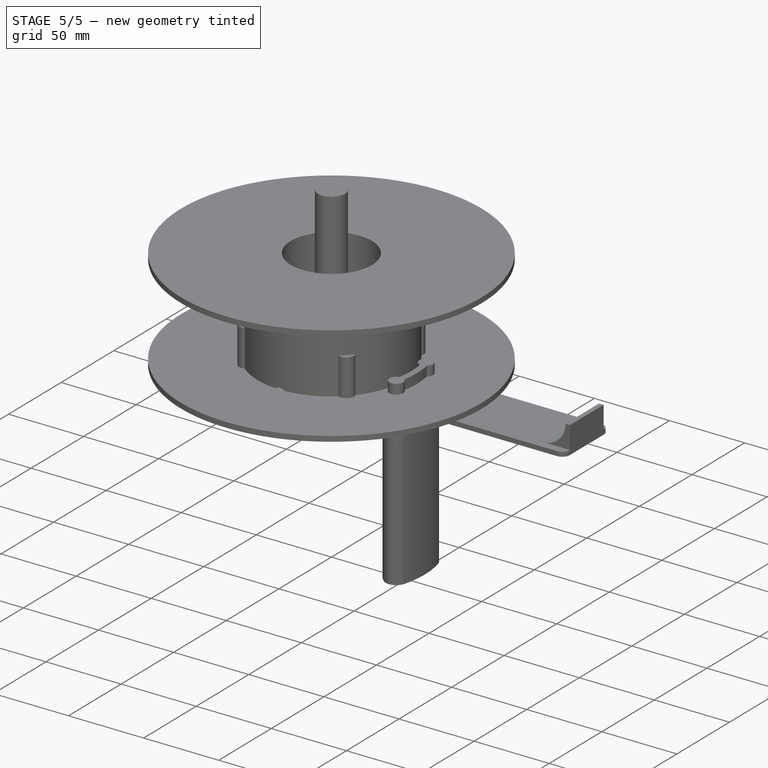
[diagram: stage 5 of 5 — iso view after this stage's code; geometry added in this stage tinted green]
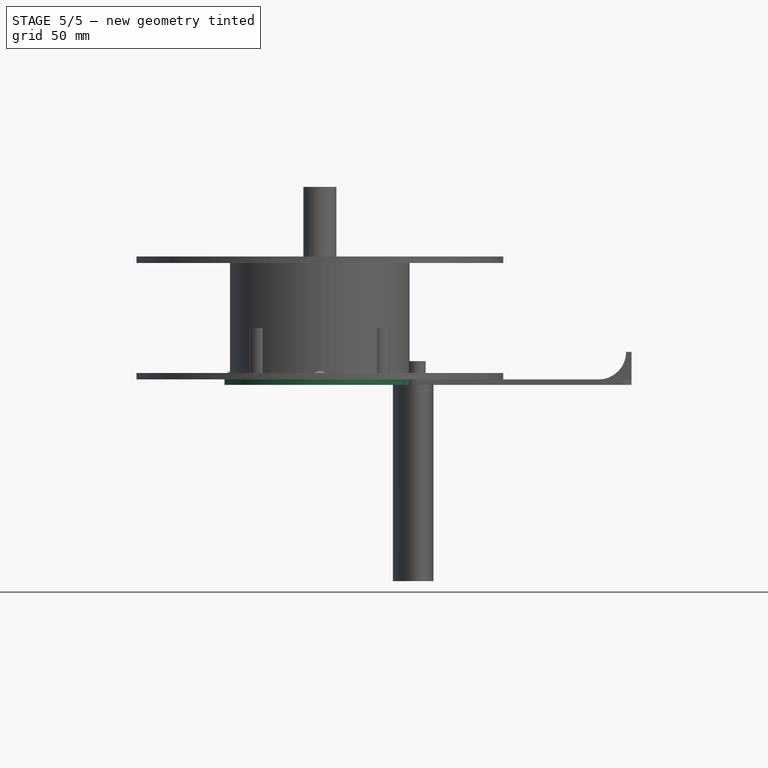
[diagram: stage 5 of 5 — front view after this stage's code; geometry added in this stage tinted green]
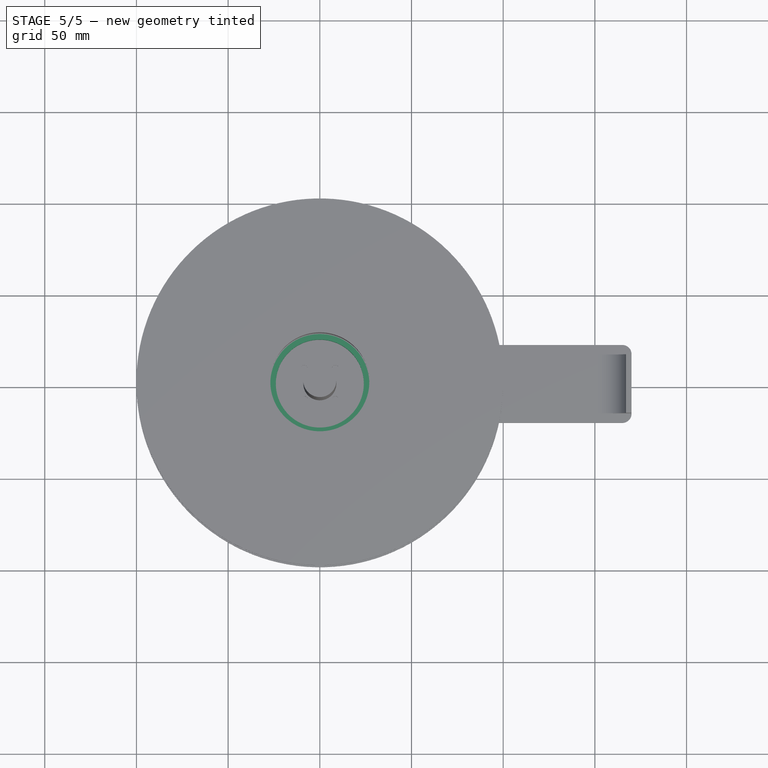
[diagram: stage 5 of 5 — top view after this stage's code; geometry added in this stage tinted green]
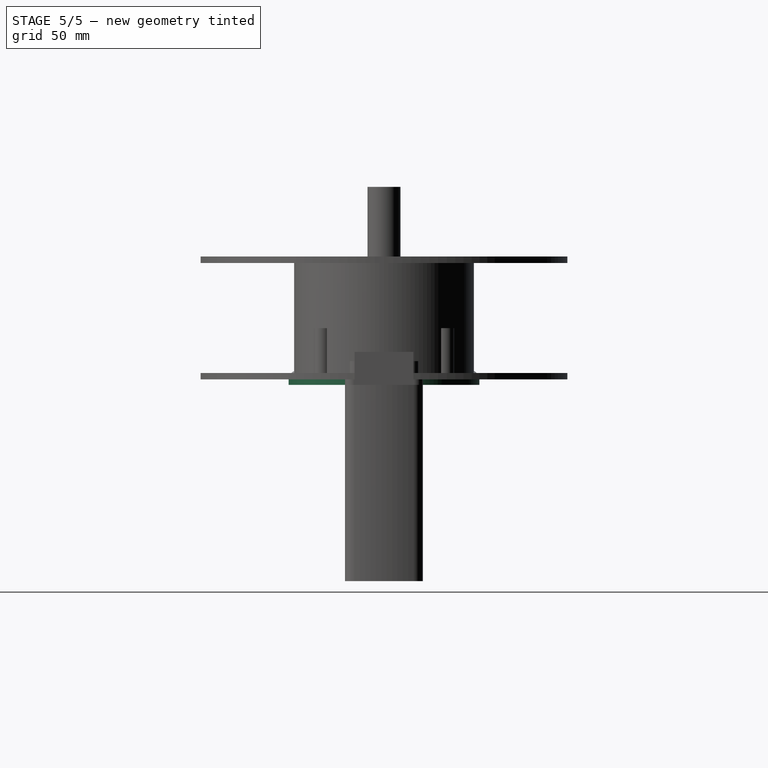
[diagram: stage 5 of 5 — right view after this stage's code; geometry added in this stage tinted green]
FEATURE [Sketcher::SketchObject] Sketch001
  ArcFitTolerance = 1e-06
  AttachmentSupport = -> [XY_Plane]
  FullyConstrained = true
  MakeInternals = false
  MapMode = 5
  sketch-geometry (2):
    g0: Circle CenterX=0 CenterY=0 CenterZ=0 NormalX=0 NormalY=0 NormalZ=1 AngleXU=0 Radius=52
    g1: Circle CenterX=0 CenterY=0 CenterZ=0 NormalX=0 NormalY=0 NormalZ=1 AngleXU=0 Radius=2
  constraints (4):
    c: Coincident(g0,g-1)
    c: Radius(g0) = 52
    c: Coincident(g1,g0)
    c: Radius(g1) = 2
FEATURE [PartDesign::Pad] Pad001
  Direction = (0,0,1)
  Length = 3
  Length2 = 10
  Profile = -> Sketch001
  ReferenceAxis = -> Sketch001 [N_Axis]
  Reversed = true
  Suppressed = false
  Type = 0
FEATURE [Sketcher::SketchObject] Sketch
  ArcFitTolerance = 1e-06
  AttachmentSupport = -> [XY_Plane]
  FullyConstrained = true
  MakeInternals = false
  MapMode = 5
  sketch-geometry (2):
    g0: Circle CenterX=0 CenterY=0 CenterZ=0 NormalX=0 NormalY=0 NormalZ=1 AngleXU=0 Radius=24
    g1: Circle CenterX=0 CenterY=0 CenterZ=0 NormalX=0 NormalY=0 NormalZ=1 AngleXU=0 Radius=27
  constraints (4):
    c: Coincident(g0,g-1)
    c: Coincident(g1,g0)
    c: Radius(g1) = 27
    c: Radius(g0) = 24
FEATURE [PartDesign::Pad] Pad
  BaseFeature = -> Pad001
  Direction = (0,0,1)
  Length = 12
  Length2 = 10
  Profile = -> Sketch
  ReferenceAxis = -> Sketch [N_Axis]
  Suppressed = false
  Type = 0
FEATURE [Sketcher::SketchObject] Sketch002
  ArcFitTolerance = 1e-06
  AttachmentSupport = -> [XY_Plane]
  FullyConstrained = true
  MakeInternals = false
  MapMode = 5
  sketch-geometry (9):
    g0: LineSegment [constr] StartX=-5.65685 StartY=5.65685 StartZ=0 EndX=-5.65685 EndY=-5.65685 EndZ=0
    g1: LineSegment [constr] StartX=-5.65685 StartY=-5.65685 StartZ=0 EndX=5.65685 EndY=-5.65685 EndZ=0
    g2: LineSegment [constr] StartX=5.65685 StartY=-5.65685 StartZ=0 EndX=5.65685 EndY=5.65685 EndZ=0
    g3: LineSegment [constr] StartX=5.65685 StartY=5.65685 StartZ=0 EndX=-5.65685 EndY=5.65685 EndZ=0
    g4: Circle [constr] CenterX=0 CenterY=0 CenterZ=0 NormalX=0 NormalY=0 NormalZ=1 AngleXU=0 Radius=8
    g5: Circle CenterX=5.65685 CenterY=5.65685 CenterZ=0 NormalX=0 NormalY=0 NormalZ=1 AngleXU=0 Radius=1.8
    g6: Circle CenterX=-5.65685 CenterY=5.65685 CenterZ=0 NormalX=0 NormalY=0 NormalZ=1 AngleXU=0 Radius=1.8
    g7: Circle CenterX=-5.65685 CenterY=-5.65685 CenterZ=0 NormalX=0 NormalY=0 NormalZ=1 AngleXU=0 Radius=1.8
    g8: Circle CenterX=5.65685 CenterY=-5.65685 CenterZ=0 NormalX=0 NormalY=0 NormalZ=1 AngleXU=0 Radius=1.8
  constraints (22):
    c: Coincident(g0,g1)
    c: Coincident(g1,g2)
    c: Coincident(g2,g3)
    c: Coincident(g3,g0)
    c: Equal(g0,g1)
    c: Equal(g0,g2)
    c: Equal(g0,g3)
    c: PointOnObject(g0,g4)
    c: PointOnObject(g1,g4)
    c: PointOnObject(g2,g4)
    c: PointOnObject(g3,g4)
    c: Coincident(g4,g-1)
    c: Radius(g4) = 8
    c: Parallel(g3,g-1)
    c: Coincident(g5,g2)
    c: Coincident(g6,g0)
    c: Coincident(g7,g0)
    c: Coincident(g8,g1)
    c: Equal(g8,g5)
    c: Equal(g5,g6)
    c: Equal(g6,g7)
    c: Radius(g5) = 1.8
FEATURE [PartDesign::Pocket] Pocket
  BaseFeature = -> Pad
  Direction = (0,0,-1)
  Length = 5
  Length2 = 5
  Profile = -> Sketch002
  ReferenceAxis = -> Sketch002 [N_Axis]
  Suppressed = false
  Type = 0
FEATURE [PartDesign::AdditiveSphere] Sphere
  Angle1 = 0
  Angle2 = 90
  Angle3 = 360
  AttacherType = Attacher::AttachEngine3D
  AttachmentOffset = pos=(0,47,0) rot=(0,0,1;0rad)
  AttachmentSupport = -> [XY_Plane002]
  BaseFeature = -> Pocket001
  MapMode = 5
  Placement = pos=(0,47,0) rot=(0,0,1;0rad)
  Radius = 5
  Suppressed = false
FEATURE [PartDesign::AdditiveSphere] Sphere001
  Angle1 = 0
  Angle2 = 90
  Angle3 = 360
  AttacherType = Attacher::AttachEngine3D
  AttachmentOffset = pos=(0,-47,0) rot=(0,0,1;0rad)
  AttachmentSupport = -> [XY_Plane002]
  BaseFeature = -> Sphere
  MapMode = 5
  Placement = pos=(0,-47,0) rot=(0,0,1;0rad)
  Radius = 5
  Suppressed = false
FEATURE [PartDesign::AdditiveSphere] Sphere002
  Angle1 = 0
  Angle2 = 90
  Angle3 = 360
  AttacherType = Attacher::AttachEngine3D
  AttachmentOffset = pos=(47,0,0) rot=(0,0,1;0rad)
  AttachmentSupport = -> [XY_Plane002]
  BaseFeature = -> Sphere001
  MapMode = 5
  Placement = pos=(47,0,0) rot=(0,0,1;0rad)
  Radius = 5
  Suppressed = false
FEATURE [PartDesign::AdditiveSphere] Sphere003
  Angle1 = 0
  Angle2 = 90
  Angle3 = 360
  AttacherType = Attacher::AttachEngine3D
  AttachmentOffset = pos=(-47,0,0) rot=(0,0,1;0rad)
  AttachmentSupport = -> [XY_Plane002]
  BaseFeature = -> Sphere002
  MapMode = 5
  Placement = pos=(-47,0,0) rot=(0,0,1;0rad)
  Radius = 5
  Suppressed = false
FEATURE [PartDesign::Pocket] Pocket002
  BaseFeature = -> Pad012
  Direction = (0,0,-1)
  Length = 15
  Length2 = 5
  Profile = -> Sketch007
  ReferenceAxis = -> Sketch007 [N_Axis]
  Suppressed = false
  Type = 0
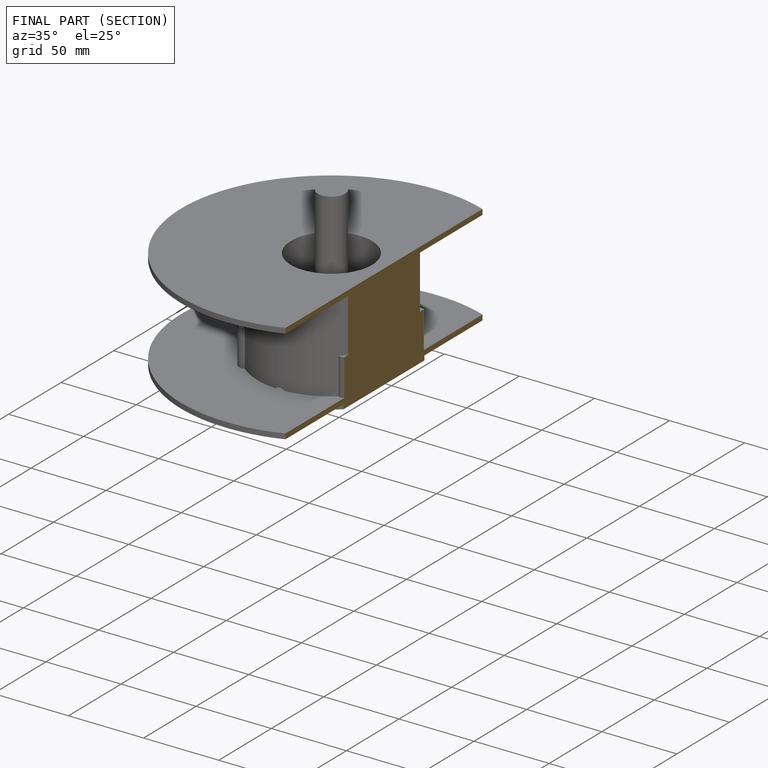
[diagram: finished part — half-section view (interior)]
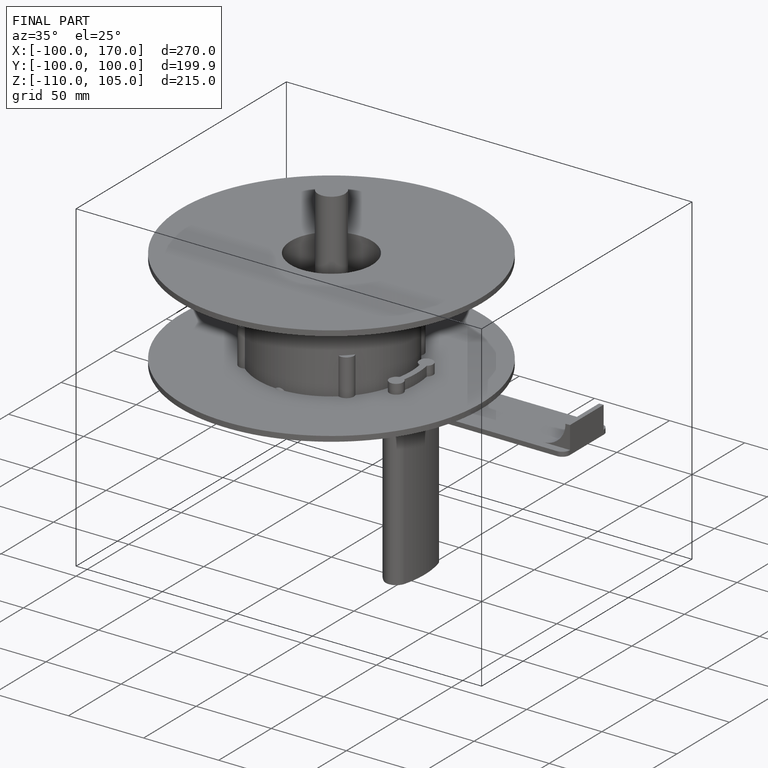
[diagram: finished part — iso view with bounding-box wireframe]
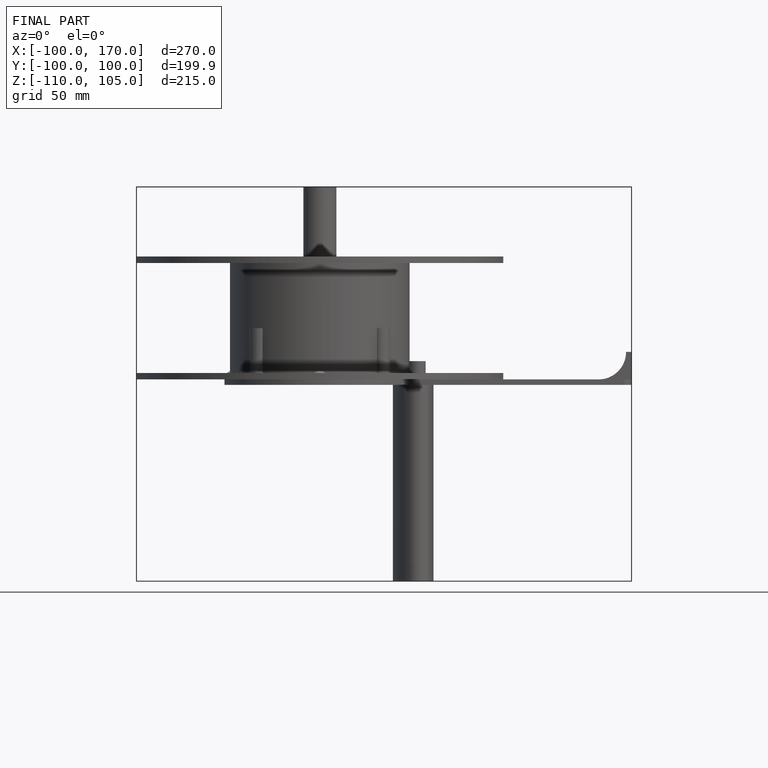
[diagram: finished part — front view with bounding-box wireframe]
